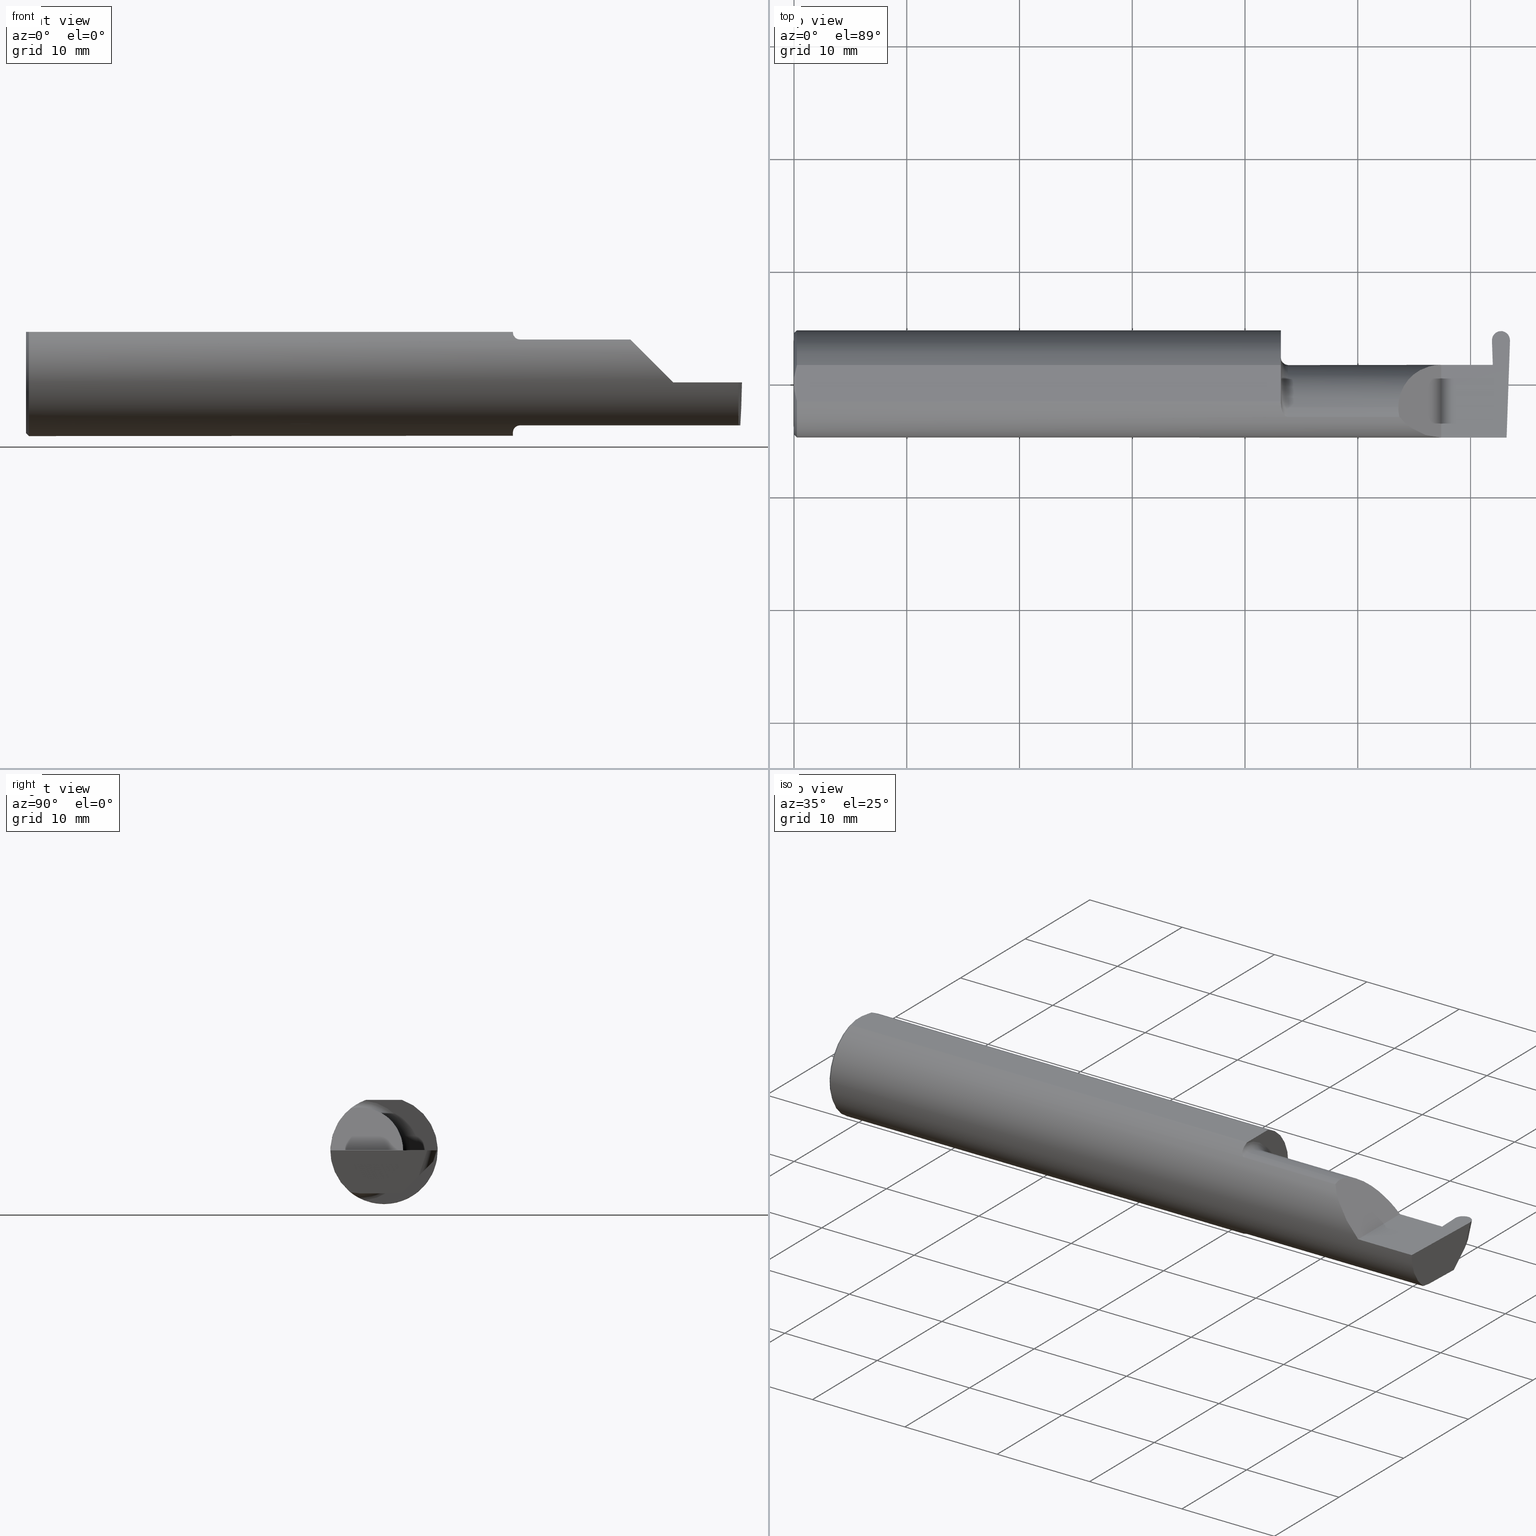
[diagram: canonical four-view strip — front | top / right | iso, engineering-drawing reading convention]
A machine part, canonical four-view strip (front | top / right | iso — engineering-drawing reading convention). The complete STEP part file that produces these views, byte-faithful:
ISO-10303-21;
HEADER;
FILE_DESCRIPTION (( 'STEP AP203' ),
    '1' );
FILE_NAME ('222143-GFR062-12.STEP',
    '2024-06-26T19:07:25',
    ( '' ),
    ( '' ),
    'SwSTEP 2.0',
    'SolidWorks 2024',
    '' );
FILE_SCHEMA (( 'CONFIG_CONTROL_DESIGN' ));
ENDSEC;

DATA;
#1 = PERSON_AND_ORGANIZATION ( #497, #401 ) ;
#2 = VERTEX_POINT ( 'NONE', #801 ) ;
#3 = EDGE_CURVE ( 'NONE', #701, #331, #411, .T. ) ;
#4 = CARTESIAN_POINT ( 'NONE',  ( 2.436927982915767288, 0.1506083980881225137, 0.000000000000000000 ) ) ;
#5 = CLOSED_SHELL ( 'NONE', ( #123, #649, #563, #377, #735, #600, #685, #46, #270, #730, #763, #70, #362, #182, #280, #488, #810, #305, #177, #349, #672, #289, #619 ) ) ;
#6 = VERTEX_POINT ( 'NONE', #573 ) ;
#7 = AXIS2_PLACEMENT_3D ( 'NONE', #476, #53, #655 ) ;
#8 = CARTESIAN_POINT ( 'NONE',  ( 2.468430450000000054, 0.1722870660481372052, -0.03801598549501235269 ) ) ;
#9 = EDGE_CURVE ( 'NONE', #382, #775, #140, .T. ) ;
#10 = ORIENTED_EDGE ( 'NONE', *, *, #525, .T. ) ;
#11 = CARTESIAN_POINT ( 'NONE',  ( 1.701062863587533558, -0.08334999999998819742, 0.1677879614275170628 ) ) ;
#12 = LINE ( 'NONE', #487, #18 ) ;
#13 = PERSON_AND_ORGANIZATION_ROLE ( 'design_supplier' ) ;
#14 = CARTESIAN_POINT ( 'NONE',  ( 2.436235694025149279, 0.1704329581048291409, 7.809760431069554296E-18 ) ) ;
#15 = LINE ( 'NONE', #580, #491 ) ;
#16 = EDGE_CURVE ( 'NONE', #352, #790, #615, .T. ) ;
#17 = DIRECTION ( 'NONE',  ( 0.000000000000000000, 0.9510565162951534202, -0.3090169943749482839 ) ) ;
#18 = VECTOR ( 'NONE', #740, 39.37007874015747433 ) ;
#19 = AXIS2_PLACEMENT_3D ( 'NONE', #781, #405, #510 ) ;
#20 = CARTESIAN_POINT ( 'NONE',  ( 1.724999999999999867, -0.08334999999999999354, 0.000000000000000000 ) ) ;
#21 = ORIENTED_EDGE ( 'NONE', *, *, #389, .T. ) ;
#22 = COORDINATED_UNIVERSAL_TIME_OFFSET ( 8, 0, .BEHIND. ) ;
#23 = PLANE ( 'NONE',  #315 ) ;
#24 = ORIENTED_EDGE ( 'NONE', *, *, #266, .F. ) ;
#25 = DIRECTION ( 'NONE',  ( -0.000000000000000000, 1.000000000000000000, -0.000000000000000000 ) ) ;
#26 = VERTEX_POINT ( 'NONE', #242 ) ;
#27 = CC_DESIGN_PERSON_AND_ORGANIZATION_ASSIGNMENT ( #453, #267, ( #731 ) ) ;
#28 = CARTESIAN_POINT ( 'NONE',  ( 2.109999999999998987, -0.08334999999999999354, 0.1499999999999999944 ) ) ;
#29 = ORIENTED_EDGE ( 'NONE', *, *, #16, .F. ) ;
#30 = CARTESIAN_POINT ( 'NONE',  ( 0.000000000000000000, 0.06325108694718235836, 0.1763499999999999235 ) ) ;
#31 = EDGE_CURVE ( 'NONE', #382, #815, #12, .T. ) ;
#32 = PRODUCT_DEFINITION_SHAPE ( 'NONE', 'NONE',  #261 ) ;
#33 = DESIGN_CONTEXT ( 'detailed design', #323, 'design' ) ;
#34 = CARTESIAN_POINT ( 'NONE',  ( 2.468430450000000054, 0.1722870660481372052, -0.03801598549501235269 ) ) ;
#35 = LINE ( 'NONE', #586, #392 ) ;
#36 = VECTOR ( 'NONE', #186, 39.37007874015748143 ) ;
#37 = EDGE_CURVE ( 'NONE', #717, #220, #62, .T. ) ;
#38 = AXIS2_PLACEMENT_3D ( 'NONE', #786, #610, #238 ) ;
#39 = FACE_OUTER_BOUND ( 'NONE', #624, .T. ) ;
#40 = ORIENTED_EDGE ( 'NONE', *, *, #546, .F. ) ;
#41 = DIMENSIONAL_EXPONENTS ( 1.000000000000000000, 0.000000000000000000, 0.000000000000000000, 0.000000000000000000, 0.000000000000000000, 0.000000000000000000, 0.000000000000000000 ) ;
#42 = PLANE ( 'NONE',  #754 ) ;
#43 = CARTESIAN_POINT ( 'NONE',  ( 1.699999999999999956, -0.06851976604679071992, -0.1743704796142198366 ) ) ;
#44 = ORIENTED_EDGE ( 'NONE', *, *, #146, .T. ) ;
#45 = CARTESIAN_POINT ( 'NONE',  ( 1.724999999999999867, -0.1172600179964006645, 0.1461167706989303372 ) ) ;
#46 = ADVANCED_FACE ( 'NONE', ( #429 ), #765, .F. ) ;
#47 = CARTESIAN_POINT ( 'NONE',  ( 2.080930449999999876, -0.1172600179964006784, 0.1461167706989303650 ) ) ;
#48 = ORIENTED_EDGE ( 'NONE', *, *, #748, .F. ) ;
#49 = CARTESIAN_POINT ( 'NONE',  ( 2.468430450000000054, 0.1722870660481372052, -0.03801598549501235269 ) ) ;
#50 = CIRCLE ( 'NONE', #595, 0.1873499999999999888 ) ;
#51 = VECTOR ( 'NONE', #198, 39.37007874015748854 ) ;
#52 = ORIENTED_EDGE ( 'NONE', *, *, #444, .T. ) ;
#53 = DIRECTION ( 'NONE',  ( -1.000000000000000000, -0.000000000000000000, -0.000000000000000000 ) ) ;
#54 = ORIENTED_EDGE ( 'NONE', *, *, #226, .T. ) ;
#55 = DIRECTION ( 'NONE',  ( -1.000000000000000000, -0.000000000000000000, -0.000000000000000000 ) ) ;
#56 = ORIENTED_EDGE ( 'NONE', *, *, #16, .T. ) ;
#57 = CC_DESIGN_PERSON_AND_ORGANIZATION_ASSIGNMENT ( #66, #552, ( #261 ) ) ;
#58 = CALENDAR_DATE ( 2024, 26, 6 ) ;
#59 = ORIENTED_EDGE ( 'NONE', *, *, #37, .F. ) ;
#60 = CARTESIAN_POINT ( 'NONE',  ( 0.01000000000000013205, -0.06325108694718235836, 0.1763499999999999235 ) ) ;
#61 = EDGE_CURVE ( 'NONE', #127, #775, #745, .T. ) ;
#62 = LINE ( 'NONE', #681, #246 ) ;
#63 = ORIENTED_EDGE ( 'NONE', *, *, #327, .F. ) ;
#64 = CARTESIAN_POINT ( 'NONE',  ( 2.439475726232482877, 0.1218770478189729889, -0.08842600372417713794 ) ) ;
#65 = AXIS2_PLACEMENT_3D ( 'NONE', #739, #665, #304 ) ;
#66 = PERSON_AND_ORGANIZATION ( #497, #401 ) ;
#67 = ORIENTED_EDGE ( 'NONE', *, *, #574, .T. ) ;
#68 = CARTESIAN_POINT ( 'NONE',  ( 1.699999999999999956, -0.06325108694718287183, 0.1763499999999999235 ) ) ;
#69 = LOCAL_TIME ( 12, 7, 25.00000000000000000, #22 ) ;
#70 = ADVANCED_FACE ( 'NONE', ( #129 ), #713, .T. ) ;
#71 = CARTESIAN_POINT ( 'NONE',  ( 2.489143054109411057, -0.08335000000000014619, -0.1500000000000000500 ) ) ;
#72 = ORIENTED_EDGE ( 'NONE', *, *, #409, .F. ) ;
#73 = CARTESIAN_POINT ( 'NONE',  ( 2.497385173767516786, 0.1218770478189729611, -0.08842600372417716570 ) ) ;
#74 = DIRECTION ( 'NONE',  ( 0.000000000000000000, 0.000000000000000000, 1.000000000000000000 ) ) ;
#75 = EDGE_LOOP ( 'NONE', ( #535, #644, #239, #147 ) ) ;
#76 = EDGE_CURVE ( 'NONE', #705, #747, #569, .T. ) ;
#77 = CARTESIAN_POINT ( 'NONE',  ( 1.724999999999999867, -0.1172600179964006784, -0.1461167706989303650 ) ) ;
#78 = CARTESIAN_POINT ( 'NONE',  ( 0.000000000000000000, 0.000000000000000000, 0.000000000000000000 ) ) ;
#79 = PERSON_AND_ORGANIZATION_ROLE ( 'creator' ) ;
#80 = AXIS2_PLACEMENT_3D ( 'NONE', #354, #599, #474 ) ;
#81 = AXIS2_PLACEMENT_3D ( 'NONE', #732, #528, #797 ) ;
#82 = CARTESIAN_POINT ( 'NONE',  ( 1.715551048069661411, -0.1140002044565611578, -0.1486821290834929865 ) ) ;
#83 = ORIENTED_EDGE ( 'NONE', *, *, #666, .T. ) ;
#84 =( BOUNDED_CURVE ( )  B_SPLINE_CURVE ( 3, ( #383, #254, #503, #761 ),
 .UNSPECIFIED., .F., .T. ) 
 B_SPLINE_CURVE_WITH_KNOTS ( ( 4, 4 ),
 ( 1.556955361882043087, 3.130020595955853135 ),
 .UNSPECIFIED. ) 
 CURVE ( )  GEOMETRIC_REPRESENTATION_ITEM ( )  RATIONAL_B_SPLINE_CURVE ( ( 1.000000000000000000, 0.8042027643195523989, 0.8042027643195523989, 1.000000000000000000 ) ) 
 REPRESENTATION_ITEM ( '' )  );
#85 = CARTESIAN_POINT ( 'NONE',  ( 2.442572338171930646, 0.06030305154315081240, -0.1500000000000000500 ) ) ;
#86 = B_SPLINE_CURVE_WITH_KNOTS ( 'NONE', 3,
 ( #752, #628, #631, #11 ),
 .UNSPECIFIED., .F., .F.,
 ( 4, 4 ),
 ( 4.423516731080805653E-05, 0.0004561457252213466573 ),
 .UNSPECIFIED. ) ;
#87 = CARTESIAN_POINT ( 'NONE',  ( 2.113883229301068312, -0.1172600179964008171, 0.1461167706989301707 ) ) ;
#88 = CARTESIAN_POINT ( 'NONE',  ( 1.724999999999999867, -0.08334999999999997966, -0.1749999999999999334 ) ) ;
#89 = LINE ( 'NONE', #30, #206 ) ;
#90 = ORIENTED_EDGE ( 'NONE', *, *, #480, .T. ) ;
#91 = DIRECTION ( 'NONE',  ( -0.000000000000000000, 1.000000000000000000, -0.000000000000000000 ) ) ;
#92 = AXIS2_PLACEMENT_3D ( 'NONE', #272, #466, #788 ) ;
#93 = VECTOR ( 'NONE', #678, 39.37007874015748143 ) ;
#94 = CARTESIAN_POINT ( 'NONE',  ( 2.113883229301068312, -0.1172600179964008171, 0.1461167706989301707 ) ) ;
#95 = CC_DESIGN_PERSON_AND_ORGANIZATION_ASSIGNMENT ( #143, #13, ( #581 ) ) ;
#96 = VERTEX_POINT ( 'NONE', #638 ) ;
#97 = EDGE_CURVE ( 'NONE', #775, #406, #334, .T. ) ;
#98 = LINE ( 'NONE', #160, #119 ) ;
#99 = CC_DESIGN_APPROVAL ( #255, ( #731 ) ) ;
#100 = CARTESIAN_POINT ( 'NONE',  ( -0.001039370078739994957, 0.06030305154315079852, -0.1500000000000000500 ) ) ;
#101 = CARTESIAN_POINT ( 'NONE',  ( 2.439954497345508511, 0.06655862405284596051, -0.005234924505382013322 ) ) ;
#102 = EDGE_CURVE ( 'NONE', #233, #485, #704, .T. ) ;
#103 = ORIENTED_EDGE ( 'NONE', *, *, #583, .F. ) ;
#104 = DIRECTION ( 'NONE',  ( -1.000000000000000000, -0.000000000000000000, -0.000000000000000000 ) ) ;
#105 = EDGE_LOOP ( 'NONE', ( #607, #197, #252, #794 ) ) ;
#106 = CIRCLE ( 'NONE', #167, 0.1499999999999999944 ) ;
#107 = DIRECTION ( 'NONE',  ( 0.000000000000000000, 0.000000000000000000, -1.000000000000000000 ) ) ;
#108 = CARTESIAN_POINT ( 'NONE',  ( 1.701062863587535334, -0.08334999999999991027, -0.1677879614275112619 ) ) ;
#109 = ORIENTED_EDGE ( 'NONE', *, *, #636, .T. ) ;
#110 = CARTESIAN_POINT ( 'NONE',  ( 2.489143054109411057, -0.08335000000000014619, -0.1500000000000000500 ) ) ;
#111 = EDGE_CURVE ( 'NONE', #400, #502, #35, .T. ) ;
#112 = DIRECTION ( 'NONE',  ( 1.000000000000000000, 7.488084056613327882E-15, -0.000000000000000000 ) ) ;
#113 = EDGE_LOOP ( 'NONE', ( #356, #218, #780, #442, #656 ) ) ;
#114 = CARTESIAN_POINT ( 'NONE',  ( 0.000000000000000000, -0.01880691362238934641, 0.1763499999999999235 ) ) ;
#115 = DIRECTION ( 'NONE',  ( 0.000000000000000000, 0.000000000000000000, -1.000000000000000000 ) ) ;
#116 = ORIENTED_EDGE ( 'NONE', *, *, #339, .T. ) ;
#117 = DIRECTION ( 'NONE',  ( 0.000000000000000000, -0.7071067811865434649, -0.7071067811865515695 ) ) ;
#118 = VECTOR ( 'NONE', #446, 39.37007874015748143 ) ;
#119 = VECTOR ( 'NONE', #516, 39.37007874015748143 ) ;
#120 = EDGE_LOOP ( 'NONE', ( #230, #434, #612 ) ) ;
#121 = PLANE ( 'NONE',  #700 ) ;
#122 = ORIENTED_EDGE ( 'NONE', *, *, #111, .T. ) ;
#123 = ADVANCED_FACE ( 'NONE', ( #712 ), #530, .T. ) ;
#124 = CARTESIAN_POINT ( 'NONE',  ( 2.500000000000000000, -0.2500000000000000555, 0.000000000000000000 ) ) ;
#125 = ORIENTED_EDGE ( 'NONE', *, *, #759, .F. ) ;
#126 = LENGTH_MEASURE_WITH_UNIT ( LENGTH_MEASURE( 0.02539999999999999897 ), #693 );
#127 = VERTEX_POINT ( 'NONE', #774 ) ;
#128 = DIRECTION ( 'NONE',  ( 1.000000000000000000, 0.000000000000000000, 0.000000000000000000 ) ) ;
#129 = FACE_OUTER_BOUND ( 'NONE', #105, .T. ) ;
#130 = DATE_AND_TIME ( #58, #413 ) ;
#131 = ORIENTED_EDGE ( 'NONE', *, *, #440, .T. ) ;
#132 = CARTESIAN_POINT ( 'NONE',  ( 2.486891473655445939, 0.1715521506114310035, -0.03875090093171857514 ) ) ;
#133 = VECTOR ( 'NONE', #436, 39.37007874015748143 ) ;
#134 = ORIENTED_EDGE ( 'NONE', *, *, #76, .T. ) ;
#135 = LINE ( 'NONE', #692, #784 ) ;
#136 = EDGE_CURVE ( 'NONE', #717, #418, #15, .T. ) ;
#137 = CARTESIAN_POINT ( 'NONE',  ( 2.468721519699850209, 0.1846500000000000363, 0.000000000000000000 ) ) ;
#138 = EDGE_LOOP ( 'NONE', ( #523, #284, #414, #582 ) ) ;
#139 = DIRECTION ( 'NONE',  ( 0.000000000000000000, 0.000000000000000000, -1.000000000000000000 ) ) ;
#140 =( BOUNDED_CURVE ( )  B_SPLINE_CURVE ( 3, ( #306, #506, #762, #424 ),
 .UNSPECIFIED., .F., .T. ) 
 B_SPLINE_CURVE_WITH_KNOTS ( ( 4, 4 ),
 ( 1.627103621474502049, 3.225696776093215590 ),
 .UNSPECIFIED. ) 
 CURVE ( )  GEOMETRIC_REPRESENTATION_ITEM ( )  RATIONAL_B_SPLINE_CURVE ( ( 1.000000000000000000, 0.7981407609938108161, 0.7981407609938108161, 1.000000000000000000 ) ) 
 REPRESENTATION_ITEM ( '' )  );
#141 = CARTESIAN_POINT ( 'NONE',  ( 2.442617676478078259, -0.08344164721461182210, -0.1500000000000000500 ) ) ;
#142 = CARTESIAN_POINT ( 'NONE',  ( 2.080930449999999876, -0.1172600179964006784, -0.1461167706989303650 ) ) ;
#143 = PERSON_AND_ORGANIZATION ( #497, #401 ) ;
#144 = AXIS2_PLACEMENT_3D ( 'NONE', #707, #769, #281 ) ;
#145 = CIRCLE ( 'NONE', #329, 0.1873499999999999888 ) ;
#146 = EDGE_CURVE ( 'NONE', #400, #233, #699, .T. ) ;
#147 = ORIENTED_EDGE ( 'NONE', *, *, #720, .T. ) ;
#148 = COORDINATED_UNIVERSAL_TIME_OFFSET ( 8, 0, .BEHIND. ) ;
#149 = CARTESIAN_POINT ( 'NONE',  ( 1.699999999999999956, 0.1873499999999998500, 0.1763499999999999235 ) ) ;
#150 = PLANE ( 'NONE',  #144 ) ;
#151 = ORIENTED_EDGE ( 'NONE', *, *, #720, .F. ) ;
#152 = CARTESIAN_POINT ( 'NONE',  ( 2.260000000000000231, -0.2500000000000000555, 2.939152317953647352E-17 ) ) ;
#153 = DIRECTION ( 'NONE',  ( -1.000000000000000000, -0.000000000000000000, -0.000000000000000000 ) ) ;
#154 = ORIENTED_EDGE ( 'NONE', *, *, #404, .T. ) ;
#155 = CARTESIAN_POINT ( 'NONE',  ( 2.468430450000000054, 0.1753165746847618611, -0.02871425790364445785 ) ) ;
#156 = AXIS2_PLACEMENT_3D ( 'NONE', #78, #328, #205 ) ;
#157 = DIRECTION ( 'NONE',  ( 0.000000000000000000, 0.000000000000000000, -1.000000000000000000 ) ) ;
#158 = EDGE_CURVE ( 'NONE', #459, #96, #455, .T. ) ;
#159 = APPROVAL_DATE_TIME ( #571, #255 ) ;
#160 = CARTESIAN_POINT ( 'NONE',  ( 2.440100631637626805, 0.1947434164498489384, -0.01555963509330036791 ) ) ;
#161 = EDGE_LOOP ( 'NONE', ( #312, #499, #648, #778, #592, #343 ) ) ;
#162 = CARTESIAN_POINT ( 'NONE',  ( 0.01000000000000013205, 0.06325108694718235836, 0.1763499999999999235 ) ) ;
#163 = CARTESIAN_POINT ( 'NONE',  ( 1.724999999999999867, -0.1172600179964006784, -0.1461167706989303650 ) ) ;
#164 = ORIENTED_EDGE ( 'NONE', *, *, #146, .F. ) ;
#165 = DIRECTION ( 'NONE',  ( 0.000000000000000000, 0.9510565162951533091, -0.3090169943749480619 ) ) ;
#166 = DIRECTION ( 'NONE',  ( 0.000000000000000000, 0.000000000000000000, -1.000000000000000000 ) ) ;
#167 = AXIS2_PLACEMENT_3D ( 'NONE', #451, #288, #396 ) ;
#168 = FACE_OUTER_BOUND ( 'NONE', #558, .T. ) ;
#169 = CARTESIAN_POINT ( 'NONE',  ( 1.699999999999999956, -0.08334999999999999354, 0.000000000000000000 ) ) ;
#170 = VERTEX_POINT ( 'NONE', #94 ) ;
#171 = LINE ( 'NONE', #300, #608 ) ;
#172 = FACE_OUTER_BOUND ( 'NONE', #161, .T. ) ;
#173 = ORIENTED_EDGE ( 'NONE', *, *, #469, .F. ) ;
#174 = APPROVAL ( #814, 'UNSPECIFIED' ) ;
#175 = DIRECTION ( 'NONE',  ( 1.000000000000000000, 0.000000000000000000, 0.000000000000000000 ) ) ;
#176 = CARTESIAN_POINT ( 'NONE',  ( 1.720724556588812071, -0.1172600179964061184, 0.1461167706989260351 ) ) ;
#177 = ADVANCED_FACE ( 'NONE', ( #472 ), #150, .F. ) ;
#178 = LINE ( 'NONE', #604, #477 ) ;
#179 = ORIENTED_EDGE ( 'NONE', *, *, #748, .T. ) ;
#180 = AXIS2_PLACEMENT_3D ( 'NONE', #779, #460, #651 ) ;
#181 = DIRECTION ( 'NONE',  ( -0.01806954526206907760, 0.01744955702544846027, 0.9996844524616944616 ) ) ;
#182 = ADVANCED_FACE ( 'NONE', ( #403 ), #225, .T. ) ;
#183 = CARTESIAN_POINT ( 'NONE',  ( 0.000000000000000000, 0.000000000000000000, 0.000000000000000000 ) ) ;
#184 = ORIENTED_EDGE ( 'NONE', *, *, #253, .T. ) ;
#185 = CARTESIAN_POINT ( 'NONE',  ( 1.701062863587535334, -0.08334999999999991027, -0.1677879614275112619 ) ) ;
#186 = DIRECTION ( 'NONE',  ( 1.000000000000000000, -0.000000000000000000, -0.000000000000000000 ) ) ;
#187 = DIRECTION ( 'NONE',  ( 1.000000000000000000, 0.000000000000000000, 0.000000000000000000 ) ) ;
#188 = EDGE_LOOP ( 'NONE', ( #378, #237, #67, #380, #342 ) ) ;
#189 = CARTESIAN_POINT ( 'NONE',  ( 2.487084196965268390, -0.1623470442677541203, -0.1099340280425337990 ) ) ;
#190 = ORIENTED_EDGE ( 'NONE', *, *, #236, .T. ) ;
#191 = CARTESIAN_POINT ( 'NONE',  ( 0.01000000000000013205, 0.000000000000000000, 0.000000000000000000 ) ) ;
#192 = EDGE_CURVE ( 'NONE', #554, #170, #575, .T. ) ;
#193 = AXIS2_PLACEMENT_3D ( 'NONE', #722, #646, #285 ) ;
#194 =( BOUNDED_CURVE ( )  B_SPLINE_CURVE ( 3, ( #639, #402, #155, #34 ),
 .UNSPECIFIED., .F., .F. ) 
 B_SPLINE_CURVE_WITH_KNOTS ( ( 4, 4 ),
 ( 4.712388980384702108, 4.737916900929588948 ),
 .UNSPECIFIED. ) 
 CURVE ( )  GEOMETRIC_REPRESENTATION_ITEM ( )  RATIONAL_B_SPLINE_CURVE ( ( 1.000000000000000000, 0.9999456945100086980, 0.9999456945100086980, 1.000000000000000000 ) ) 
 REPRESENTATION_ITEM ( '' )  );
#195 = AXIS2_PLACEMENT_3D ( 'NONE', #680, #128, #376 ) ;
#196 = COORDINATED_UNIVERSAL_TIME_OFFSET ( 8, 0, .BEHIND. ) ;
#197 = ORIENTED_EDGE ( 'NONE', *, *, #236, .F. ) ;
#198 = DIRECTION ( 'NONE',  ( -0.03489949670249307273, -0.9993908270190959842, 0.000000000000000000 ) ) ;
#199 = CARTESIAN_POINT ( 'NONE',  ( 2.442617647571764028, -0.08334999999999999354, -0.1500000000000000222 ) ) ;
#200 = CARTESIAN_POINT ( 'NONE',  ( 0.000000000000000000, 0.000000000000000000, -0.1773499999999999521 ) ) ;
#201 = CARTESIAN_POINT ( 'NONE',  ( 1.702158970028690321, -0.09067355718685707333, 0.1641499263364886718 ) ) ;
#202 = EDGE_CURVE ( 'NONE', #751, #633, #106, .T. ) ;
#203 = APPROVAL_DATE_TIME ( #340, #174 ) ;
#204 = CYLINDRICAL_SURFACE ( 'NONE', #367, 0.03149999999999998634 ) ;
#205 = DIRECTION ( 'NONE',  ( 0.000000000000000000, 0.000000000000000000, -1.000000000000000000 ) ) ;
#206 = VECTOR ( 'NONE', #642, 39.37007874015748143 ) ;
#207 = SHAPE_DEFINITION_REPRESENTATION ( #32, #723 ) ;
#208 = DIRECTION ( 'NONE',  ( 0.000000000000000000, 0.000000000000000000, 1.000000000000000000 ) ) ;
#209 = CARTESIAN_POINT ( 'NONE',  ( 2.150065971957465294, -0.1623470442677542591, 0.1099340280425336325 ) ) ;
#210 = ORIENTED_EDGE ( 'NONE', *, *, #202, .T. ) ;
#211 = CARTESIAN_POINT ( 'NONE',  ( 2.109999999999998543, 0.004517965644035734120, 0.1499999999999999667 ) ) ;
#212 = DIRECTION ( 'NONE',  ( -0.03701744261649762141, 0.7066221440565398915, 0.7066221440565479961 ) ) ;
#213 = ORIENTED_EDGE ( 'NONE', *, *, #666, .F. ) ;
#214 = APPROVAL_ROLE ( '' ) ;
#215 = FACE_OUTER_BOUND ( 'NONE', #282, .T. ) ;
#216 = DIRECTION ( 'NONE',  ( 0.7071067811865511255, 0.000000000000000000, -0.7071067811865439090 ) ) ;
#217 = EDGE_CURVE ( 'NONE', #585, #513, #89, .T. ) ;
#218 = ORIENTED_EDGE ( 'NONE', *, *, #404, .F. ) ;
#219 = CARTESIAN_POINT ( 'NONE',  ( 2.109999999999998543, -0.09477667630339427218, 0.1499999999999999667 ) ) ;
#220 = VERTEX_POINT ( 'NONE', #337 ) ;
#221 = VECTOR ( 'NONE', #390, 39.37007874015748143 ) ;
#222 = CARTESIAN_POINT ( 'NONE',  ( 0.001616639753276021213, 0.03405189565400638246, 0.1763499999999999235 ) ) ;
#223 = CARTESIAN_POINT ( 'NONE',  ( 1.724999999999999867, -0.08334999999999997966, -0.1499999999999999944 ) ) ;
#224 =( BOUNDED_CURVE ( )  B_SPLINE_CURVE ( 3, ( #8, #132, #258, #505 ),
 .UNSPECIFIED., .F., .F. ) 
 B_SPLINE_CURVE_WITH_KNOTS ( ( 4, 4 ),
 ( 3.153164711223715777, 4.726229945297543367 ),
 .UNSPECIFIED. ) 
 CURVE ( )  GEOMETRIC_REPRESENTATION_ITEM ( )  RATIONAL_B_SPLINE_CURVE ( ( 1.000000000000000000, 0.8042027643195482911, 0.8042027643195482911, 1.000000000000000000 ) ) 
 REPRESENTATION_ITEM ( '' )  );
#225 = CYLINDRICAL_SURFACE ( 'NONE', #193, 0.1499999999999999944 ) ;
#226 = EDGE_CURVE ( 'NONE', #331, #751, #299, .T. ) ;
#227 = CYLINDRICAL_SURFACE ( 'NONE', #596, 0.1499999999999999944 ) ;
#228 = PLANE ( 'NONE',  #80 ) ;
#229 = DIRECTION ( 'NONE',  ( 0.01806679408117650709, 0.000000000000000000, -0.9998367821557817559 ) ) ;
#230 = ORIENTED_EDGE ( 'NONE', *, *, #97, .T. ) ;
#231 = CC_DESIGN_PERSON_AND_ORGANIZATION_ASSIGNMENT ( #1, #430, ( #468 ) ) ;
#232 = FACE_OUTER_BOUND ( 'NONE', #733, .T. ) ;
#233 = VERTEX_POINT ( 'NONE', #518 ) ;
#234 = CARTESIAN_POINT ( 'NONE',  ( 1.699999999999999956, -0.08334999999999999354, 0.1499999999999999944 ) ) ;
#235 = CC_DESIGN_SECURITY_CLASSIFICATION ( #731, ( #581 ) ) ;
#236 = EDGE_CURVE ( 'NONE', #485, #400, #809, .T. ) ;
#237 = ORIENTED_EDGE ( 'NONE', *, *, #613, .F. ) ;
#238 = DIRECTION ( 'NONE',  ( 0.000000000000000000, 0.000000000000000000, 1.000000000000000000 ) ) ;
#239 = ORIENTED_EDGE ( 'NONE', *, *, #226, .F. ) ;
#240 = FACE_OUTER_BOUND ( 'NONE', #277, .T. ) ;
#241 = EDGE_CURVE ( 'NONE', #485, #513, #643, .T. ) ;
#242 = CARTESIAN_POINT ( 'NONE',  ( 2.260000000000000231, 0.06664999999999998703, 9.797174393178831081E-17 ) ) ;
#243 = PERSON_AND_ORGANIZATION ( #497, #401 ) ;
#244 = ORIENTED_EDGE ( 'NONE', *, *, #785, .T. ) ;
#245 = CARTESIAN_POINT ( 'NONE',  ( 0.001595548104417008695, -0.03385300050298640367, 0.1763499999999999235 ) ) ;
#246 = VECTOR ( 'NONE', #181, 39.37007874015747433 ) ;
#247 = AXIS2_PLACEMENT_3D ( 'NONE', #664, #673, #229 ) ;
#248 = CARTESIAN_POINT ( 'NONE',  ( 2.260000000000000231, -0.2500000000000000555, 2.939152317953647352E-17 ) ) ;
#249 = PLANE ( 'NONE',  #351 ) ;
#250 = ORIENTED_EDGE ( 'NONE', *, *, #202, .F. ) ;
#251 = CARTESIAN_POINT ( 'NONE',  ( 1.705806801261507077, -0.1009700360460132340, -0.1578590382459147401 ) ) ;
#252 = ORIENTED_EDGE ( 'NONE', *, *, #241, .T. ) ;
#253 = EDGE_CURVE ( 'NONE', #529, #96, #407, .T. ) ;
#254 = CARTESIAN_POINT ( 'NONE',  ( 2.437968007029192030, 0.1506577441815558915, -0.05964530736159392305 ) ) ;
#255 = APPROVAL ( #776, 'UNSPECIFIED' ) ;
#256 = APPLICATION_PROTOCOL_DEFINITION ( 'international standard', 'config_control_design', 1994, #323 ) ;
#257 = ORIENTED_EDGE ( 'NONE', *, *, #480, .F. ) ;
#258 = CARTESIAN_POINT ( 'NONE',  ( 2.498892892970808521, 0.1506577441815562524, -0.05964530736159356916 ) ) ;
#259 = TOROIDAL_SURFACE ( 'NONE', #594, 0.1749999999999999334, 0.02499999999999993894 ) ;
#260 = VECTOR ( 'NONE', #395, 39.37007874015748143 ) ;
#261 = PRODUCT_DEFINITION ( 'UNKNOWN', '', #581, #33 ) ;
#262 = DIRECTION ( 'NONE',  ( 0.000000000000000000, -0.9510565162951534202, 0.3090169943749482284 ) ) ;
#263 = ORIENTED_EDGE ( 'NONE', *, *, #409, .T. ) ;
#264 = LINE ( 'NONE', #438, #51 ) ;
#265 = CARTESIAN_POINT ( 'NONE',  ( 1.701062863587533558, -0.08334999999998819742, 0.1677879614275170628 ) ) ;
#266 = EDGE_CURVE ( 'NONE', #701, #751, #659, .T. ) ;
#267 = PERSON_AND_ORGANIZATION_ROLE ( 'classification_officer' ) ;
#268 = CARTESIAN_POINT ( 'NONE',  ( 1.702380638915944600, -0.09060738690120614947, -0.1640321561807271122 ) ) ;
#269 = DIRECTION ( 'NONE',  ( -0.7071067811865441310, 0.000000000000000000, -0.7071067811865510144 ) ) ;
#270 = ADVANCED_FACE ( 'NONE', ( #536 ), #310, .F. ) ;
#271 = LINE ( 'NONE', #149, #647 ) ;
#272 = CARTESIAN_POINT ( 'NONE',  ( 1.699999999999999956, -0.08334999999999999354, 0.000000000000000000 ) ) ;
#273 = AXIS2_PLACEMENT_3D ( 'NONE', #381, #318, #139 ) ;
#274 = VECTOR ( 'NONE', #387, 39.37007874015748143 ) ;
#275 = DIRECTION ( 'NONE',  ( 0.000000000000000000, 1.000000000000000000, 0.000000000000000000 ) ) ;
#276 = CARTESIAN_POINT ( 'NONE',  ( 2.260000000000000231, -0.1873499999999999888, 2.939152317953647352E-17 ) ) ;
#277 = EDGE_LOOP ( 'NONE', ( #21, #787, #398, #179 ) ) ;
#278 = CALENDAR_DATE ( 2024, 26, 6 ) ;
#279 = DIRECTION ( 'NONE',  ( 7.486943585142156164E-15, -0.9998476951563912696, 0.01745240643728358451 ) ) ;
#280 = ADVANCED_FACE ( 'NONE', ( #240 ), #545, .T. ) ;
#281 = DIRECTION ( 'NONE',  ( -0.03489949670249345437, 0.9993908270190959842, 0.000000000000000000 ) ) ;
#282 = EDGE_LOOP ( 'NONE', ( #617, #709, #589 ) ) ;
#283 = CARTESIAN_POINT ( 'NONE',  ( 0.01000000000000013205, 0.000000000000000000, -0.1873499999999999888 ) ) ;
#284 = ORIENTED_EDGE ( 'NONE', *, *, #192, .F. ) ;
#285 = DIRECTION ( 'NONE',  ( 0.000000000000000000, 0.000000000000000000, 1.000000000000000000 ) ) ;
#286 = LINE ( 'NONE', #363, #439 ) ;
#287 = AXIS2_PLACEMENT_3D ( 'NONE', #427, #294, #165 ) ;
#288 = DIRECTION ( 'NONE',  ( -1.000000000000000000, -0.000000000000000000, -0.000000000000000000 ) ) ;
#289 = ADVANCED_FACE ( 'NONE', ( #492 ), #606, .T. ) ;
#290 = DIRECTION ( 'NONE',  ( 0.02739170151059983765, 0.3089010440752013031, 0.9506996579664920288 ) ) ;
#291 = DIRECTION ( 'NONE',  ( 0.000000000000000000, 0.000000000000000000, -1.000000000000000000 ) ) ;
#292 = CARTESIAN_POINT ( 'NONE',  ( 2.430708765333227994, 0.06661954135095468632, -0.001744974835126431381 ) ) ;
#293 = VERTEX_POINT ( 'NONE', #415 ) ;
#294 = DIRECTION ( 'NONE',  ( -0.02739170151059983765, -0.3089010440752013031, -0.9506996579664919178 ) ) ;
#295 = CC_DESIGN_DATE_AND_TIME_ASSIGNMENT ( #811, #379, ( #261 ) ) ;
#296 = CARTESIAN_POINT ( 'NONE',  ( 2.442502567817287584, 0.06409798100083120842, -0.1462050705423010022 ) ) ;
#297 = ORIENTED_EDGE ( 'NONE', *, *, #61, .F. ) ;
#298 = EDGE_CURVE ( 'NONE', #738, #233, #309, .T. ) ;
#299 = CIRCLE ( 'NONE', #568, 0.1499999999999999944 ) ;
#300 = CARTESIAN_POINT ( 'NONE',  ( 2.436916352538876840, 0.1507395558974708172, 0.0004036622306032534510 ) ) ;
#301 = ORIENTED_EDGE ( 'NONE', *, *, #509, .T. ) ;
#302 = CARTESIAN_POINT ( 'NONE',  ( 0.01000000000000013205, -0.06325108694718235836, 0.1763499999999999235 ) ) ;
#303 = ORIENTED_EDGE ( 'NONE', *, *, #708, .T. ) ;
#304 = DIRECTION ( 'NONE',  ( 0.000000000000000000, 0.000000000000000000, 1.000000000000000000 ) ) ;
#305 = ADVANCED_FACE ( 'NONE', ( #361 ), #42, .F. ) ;
#306 = CARTESIAN_POINT ( 'NONE',  ( 2.499932917084233264, 0.1506083980881225415, 0.000000000000000000 ) ) ;
#307 = APPLICATION_CONTEXT ( 'configuration controlled 3d designs of mechanical parts and assemblies' ) ;
#308 = VERTEX_POINT ( 'NONE', #49 ) ;
#309 = B_SPLINE_CURVE_WITH_KNOTS ( 'NONE', 3,
 ( #60, #412, #245, #114 ),
 .UNSPECIFIED., .F., .F.,
 ( 4, 4 ),
 ( 0.009771445421851331775, 0.01092787937989104369 ),
 .UNSPECIFIED. ) ;
#310 = PLANE ( 'NONE',  #671 ) ;
#311 = EDGE_LOOP ( 'NONE', ( #325, #116, #494, #371, #478 ) ) ;
#312 = ORIENTED_EDGE ( 'NONE', *, *, #550, .T. ) ;
#313 = CARTESIAN_POINT ( 'NONE',  ( 0.000000000000000000, 0.01880691362238934988, 0.1763499999999999235 ) ) ;
#314 = VECTOR ( 'NONE', #603, 39.37007874015748143 ) ;
#315 = AXIS2_PLACEMENT_3D ( 'NONE', #579, #279, #645 ) ;
#316 = PERSON_AND_ORGANIZATION ( #497, #401 ) ;
#317 = ORIENTED_EDGE ( 'NONE', *, *, #772, .F. ) ;
#318 = DIRECTION ( 'NONE',  ( 1.000000000000000000, 0.000000000000000000, 0.000000000000000000 ) ) ;
#319 = LOCAL_TIME ( 12, 7, 25.00000000000000000, #710 ) ;
#320 = CARTESIAN_POINT ( 'NONE',  ( 2.488744025780163405, -0.09477667630339431382, -0.1499999999999999667 ) ) ;
#321 = ORIENTED_EDGE ( 'NONE', *, *, #658, .F. ) ;
#322 = CARTESIAN_POINT ( 'NONE',  ( 1.717163414264744281, -0.1151183835841406849, -0.1478135984872520625 ) ) ;
#323 = APPLICATION_CONTEXT ( 'configuration controlled 3d designs of mechanical parts and assemblies' ) ;
#324 = MECHANICAL_CONTEXT ( 'NONE', #307, 'mechanical' ) ;
#325 = ORIENTED_EDGE ( 'NONE', *, *, #397, .T. ) ;
#326 = CARTESIAN_POINT ( 'NONE',  ( 1.704475235432781455, -0.09757364237049408195, -0.1599863467203317680 ) ) ;
#327 = EDGE_CURVE ( 'NONE', #790, #633, #486, .T. ) ;
#328 = DIRECTION ( 'NONE',  ( 1.000000000000000000, 0.000000000000000000, 0.000000000000000000 ) ) ;
#329 = AXIS2_PLACEMENT_3D ( 'NONE', #191, #634, #445 ) ;
#330 = EDGE_CURVE ( 'NONE', #452, #6, #50, .T. ) ;
#331 = VERTEX_POINT ( 'NONE', #45 ) ;
#332 =( BOUNDED_CURVE ( )  B_SPLINE_CURVE ( 3, ( #464, #711, #766, #101 ),
 .UNSPECIFIED., .F., .F. ) 
 B_SPLINE_CURVE_WITH_KNOTS ( ( 4, 4 ),
 ( 3.159045946109736214, 4.694935687864695950 ),
 .UNSPECIFIED. ) 
 CURVE ( )  GEOMETRIC_REPRESENTATION_ITEM ( )  RATIONAL_B_SPLINE_CURVE ( ( 1.000000000000000000, 0.8128932002257790446, 0.8128932002257790446, 1.000000000000000000 ) ) 
 REPRESENTATION_ITEM ( '' )  );
#333 = CARTESIAN_POINT ( 'NONE',  ( 2.466286742368338114, 0.2055425243730719109, 0.06430057831303588600 ) ) ;
#334 = LINE ( 'NONE', #782, #741 ) ;
#335 = CALENDAR_DATE ( 2024, 26, 6 ) ;
#336 = CARTESIAN_POINT ( 'NONE',  ( 2.260000000000000231, 0.06664999999999998703, 9.797174393178831081E-17 ) ) ;
#337 = CARTESIAN_POINT ( 'NONE',  ( 2.439954497345508511, 0.06655862405284596051, -0.005234924505382013322 ) ) ;
#338 = ORIENTED_EDGE ( 'NONE', *, *, #509, .F. ) ;
#339 = EDGE_CURVE ( 'NONE', #808, #418, #171, .T. ) ;
#340 = DATE_AND_TIME ( #278, #69 ) ;
#341 = CARTESIAN_POINT ( 'NONE',  ( 2.468139380300150343, 0.1846500000000000363, 0.000000000000000000 ) ) ;
#342 = ORIENTED_EDGE ( 'NONE', *, *, #339, .F. ) ;
#343 = ORIENTED_EDGE ( 'NONE', *, *, #298, .F. ) ;
#344 = DIRECTION ( 'NONE',  ( -0.02739170151059995562, 0.3089010440752013587, 0.9506996579664918068 ) ) ;
#345 = UNCERTAINTY_MEASURE_WITH_UNIT (LENGTH_MEASURE( 1.000000000000000082E-05 ), #561, 'distance_accuracy_value', 'NONE');
#346 = CARTESIAN_POINT ( 'NONE',  ( 1.699999999999999956, -0.06851976604679071992, -0.1743704796142198366 ) ) ;
#347 = VERTEX_POINT ( 'NONE', #532 ) ;
#348 = CARTESIAN_POINT ( 'NONE',  ( 2.496599625675735457, 0.1068818013178887971, -0.1034212502252615240 ) ) ;
#349 = ADVANCED_FACE ( 'NONE', ( #799 ), #228, .F. ) ;
#350 = CARTESIAN_POINT ( 'NONE',  ( 2.488026713523223243, -0.1172600179964006784, -0.1461167706989303650 ) ) ;
#351 = AXIS2_PLACEMENT_3D ( 'NONE', #625, #262, #742 ) ;
#352 = VERTEX_POINT ( 'NONE', #110 ) ;
#353 = CIRCLE ( 'NONE', #539, 0.1499999999999999944 ) ;
#354 = CARTESIAN_POINT ( 'NONE',  ( 2.499980768683121024, 0.1519786885938757826, 0.000000000000000000 ) ) ;
#355 = FACE_OUTER_BOUND ( 'NONE', #75, .T. ) ;
#356 = ORIENTED_EDGE ( 'NONE', *, *, #708, .F. ) ;
#357 = CARTESIAN_POINT ( 'NONE',  ( -0.001039370078739994957, 0.1723030515431495657, -0.03799999999999999906 ) ) ;
#358 = EDGE_CURVE ( 'NONE', #490, #751, #734, .T. ) ;
#359 = CARTESIAN_POINT ( 'NONE',  ( 2.430739223982273156, 0.06664999999999991764, 0.000000000000000000 ) ) ;
#360 = ORIENTED_EDGE ( 'NONE', *, *, #9, .T. ) ;
#361 = FACE_OUTER_BOUND ( 'NONE', #520, .T. ) ;
#362 = ADVANCED_FACE ( 'NONE', ( #726 ), #259, .F. ) ;
#363 = CARTESIAN_POINT ( 'NONE',  ( 2.499944547461123268, 0.1507395558974708449, 0.0004036622306032633173 ) ) ;
#364 = ORIENTED_EDGE ( 'NONE', *, *, #785, .F. ) ;
#365 = TOROIDAL_SURFACE ( 'NONE', #65, 0.1749999999999999334, 0.02499999999999993894 ) ;
#366 = CARTESIAN_POINT ( 'NONE',  ( 1.724999999999999867, -0.08334999999999999354, 0.1749999999999999334 ) ) ;
#367 = AXIS2_PLACEMENT_3D ( 'NONE', #447, #698, #17 ) ;
#368 = PRODUCT_RELATED_PRODUCT_CATEGORY ( 'detail', '', ( #468 ) ) ;
#369 = CARTESIAN_POINT ( 'NONE',  ( 1.724999999999999867, -0.1172600179964006645, 0.1461167706989303372 ) ) ;
#370 = CARTESIAN_POINT ( 'NONE',  ( 0.000000000000000000, 0.000000000000000000, 0.000000000000000000 ) ) ;
#371 = ORIENTED_EDGE ( 'NONE', *, *, #37, .T. ) ;
#372 = DIRECTION ( 'NONE',  ( 1.000000000000000000, 0.000000000000000000, 0.000000000000000000 ) ) ;
#373 = CARTESIAN_POINT ( 'NONE',  ( 1.704075010165368775, -0.09778159395695865119, 0.1599914159748310472 ) ) ;
#374 = LINE ( 'NONE', #385, #133 ) ;
#375 = ORIENTED_EDGE ( 'NONE', *, *, #432, .T. ) ;
#376 = DIRECTION ( 'NONE',  ( 0.000000000000000000, 0.000000000000000000, -1.000000000000000000 ) ) ;
#377 = ADVANCED_FACE ( 'NONE', ( #168 ), #365, .F. ) ;
#378 = ORIENTED_EDGE ( 'NONE', *, *, #525, .F. ) ;
#379 = DATE_TIME_ROLE ( 'creation_date' ) ;
#380 = ORIENTED_EDGE ( 'NONE', *, *, #432, .F. ) ;
#381 = CARTESIAN_POINT ( 'NONE',  ( 1.699999999999999956, 0.000000000000000000, 0.000000000000000000 ) ) ;
#382 = VERTEX_POINT ( 'NONE', #669 ) ;
#383 = CARTESIAN_POINT ( 'NONE',  ( 2.439475726232482877, 0.1218770478189729889, -0.08842600372417713794 ) ) ;
#384 = EDGE_CURVE ( 'NONE', #705, #815, #746, .T. ) ;
#385 = CARTESIAN_POINT ( 'NONE',  ( 1.699999999999999956, 0.06664999999999998703, 9.797174393178831081E-17 ) ) ;
#386 = EDGE_LOOP ( 'NONE', ( #301, #59, #40, #566 ) ) ;
#387 = DIRECTION ( 'NONE',  ( -0.03489949670249346131, 0.9993908270190959842, -0.000000000000000000 ) ) ;
#388 = FACE_OUTER_BOUND ( 'NONE', #120, .T. ) ;
#389 = EDGE_CURVE ( 'NONE', #540, #585, #626, .T. ) ;
#390 = DIRECTION ( 'NONE',  ( -0.0003154085283454578109, 0.9999999502587288980, 0.000000000000000000 ) ) ;
#391 = DIRECTION ( 'NONE',  ( -1.000000000000000000, -0.000000000000000000, -0.000000000000000000 ) ) ;
#392 = VECTOR ( 'NONE', #216, 39.37007874015748143 ) ;
#393 = CARTESIAN_POINT ( 'NONE',  ( 2.436927982915767288, 0.1506083980881225137, 0.000000000000000000 ) ) ;
#394 = B_SPLINE_CURVE_WITH_KNOTS ( 'NONE', 3,
 ( #77, #635, #435, #322, #82, #560, #744, #251, #326, #268, #564, #185 ),
 .UNSPECIFIED., .F., .F.,
 ( 4, 2, 2, 2, 2, 4 ),
 ( 1.967976973658592312E-07, 0.0001599896235275545693, 0.0003197824493577432442, 0.0006393681010181212444, 0.0009589537526784992988, 0.001278539404338877245 ),
 .UNSPECIFIED. ) ;
#395 = DIRECTION ( 'NONE',  ( 1.000000000000000000, 0.000000000000000000, 0.000000000000000000 ) ) ;
#396 = DIRECTION ( 'NONE',  ( 0.000000000000000000, 0.000000000000000000, 1.000000000000000000 ) ) ;
#397 = EDGE_CURVE ( 'NONE', #293, #808, #813, .T. ) ;
#398 = ORIENTED_EDGE ( 'NONE', *, *, #330, .T. ) ;
#399 = DIRECTION ( 'NONE',  ( 0.000000000000000000, 0.000000000000000000, 1.000000000000000000 ) ) ;
#400 = VERTEX_POINT ( 'NONE', #200 ) ;
#401 = ORGANIZATION ( 'UNSPECIFIED', 'UNSPECIFIED', '' ) ;
#402 = CARTESIAN_POINT ( 'NONE',  ( 2.468430450000000054, 0.1783435689548762415, -0.01940919900590836258 ) ) ;
#403 = FACE_OUTER_BOUND ( 'NONE', #661, .T. ) ;
#404 = EDGE_CURVE ( 'NONE', #308, #459, #224, .T. ) ;
#405 = DIRECTION ( 'NONE',  ( -1.000000000000000000, -0.000000000000000000, -0.000000000000000000 ) ) ;
#406 = VERTEX_POINT ( 'NONE', #572 ) ;
#407 = LINE ( 'NONE', #100, #553 ) ;
#408 = DIRECTION ( 'NONE',  ( 1.000000000000000000, 0.000000000000000000, 0.000000000000000000 ) ) ;
#409 = EDGE_CURVE ( 'NONE', #6, #701, #86, .T. ) ;
#410 = ORIENTED_EDGE ( 'NONE', *, *, #420, .T. ) ;
#411 = B_SPLINE_CURVE_WITH_KNOTS ( 'NONE', 3,
 ( #265, #201, #373, #551, #483, #736, #176, #369 ),
 .UNSPECIFIED., .F., .F.,
 ( 4, 2, 2, 4 ),
 ( 0.0004561457252213466573, 0.001084815134961801542, 0.001399149839832030014, 0.001713484544702258486 ),
 .UNSPECIFIED. ) ;
#412 = CARTESIAN_POINT ( 'NONE',  ( 0.005151108632379722968, -0.04888864921576022843, 0.1763499999999999235 ) ) ;
#413 = LOCAL_TIME ( 12, 7, 25.00000000000000000, #682 ) ;
#414 = ORIENTED_EDGE ( 'NONE', *, *, #629, .T. ) ;
#415 = CARTESIAN_POINT ( 'NONE',  ( 2.439859874782298377, 0.06664999999999998703, 0.000000000000000000 ) ) ;
#416 = CARTESIAN_POINT ( 'NONE',  ( 2.430678306684182832, 0.06658908270190945500, -0.003489949670252863196 ) ) ;
#417 = LOCAL_TIME ( 12, 7, 25.00000000000000000, #148 ) ;
#418 = VERTEX_POINT ( 'NONE', #64 ) ;
#419 = DIRECTION ( 'NONE',  ( -1.000000000000000000, -0.000000000000000000, -0.000000000000000000 ) ) ;
#420 = EDGE_CURVE ( 'NONE', #96, #352, #264, .T. ) ;
#421 = PLANE ( 'NONE',  #81 ) ;
#422 = ORIENTED_EDGE ( 'NONE', *, *, #384, .F. ) ;
#423 = DIRECTION ( 'NONE',  ( 0.000000000000000000, 0.000000000000000000, 1.000000000000000000 ) ) ;
#424 = CARTESIAN_POINT ( 'NONE',  ( 2.468721519699850209, 0.1846500000000000363, 0.000000000000000000 ) ) ;
#425 = DIRECTION ( 'NONE',  ( -1.000000000000000000, -0.000000000000000000, -0.000000000000000000 ) ) ;
#426 = ORIENTED_EDGE ( 'NONE', *, *, #327, .T. ) ;
#427 = CARTESIAN_POINT ( 'NONE',  ( 2.466868444985754305, 0.1337942696928608455, -0.05458170264606325428 ) ) ;
#428 = VECTOR ( 'NONE', #91, 39.37007874015748143 ) ;
#429 = FACE_OUTER_BOUND ( 'NONE', #138, .T. ) ;
#430 = PERSON_AND_ORGANIZATION_ROLE ( 'design_owner' ) ;
#431 = ORIENTED_EDGE ( 'NONE', *, *, #76, .F. ) ;
#432 = EDGE_CURVE ( 'NONE', #418, #308, #84, .T. ) ;
#433 = CARTESIAN_POINT ( 'NONE',  ( 2.430739223982273156, 0.06664999999999991764, 0.000000000000000000 ) ) ;
#434 = ORIENTED_EDGE ( 'NONE', *, *, #613, .T. ) ;
#435 = CARTESIAN_POINT ( 'NONE',  ( 1.720804171164107332, -0.1167508198888949772, -0.1465276362740037253 ) ) ;
#436 = DIRECTION ( 'NONE',  ( 1.000000000000000000, 0.000000000000000000, 0.000000000000000000 ) ) ;
#437 = ORIENTED_EDGE ( 'NONE', *, *, #397, .F. ) ;
#438 = CARTESIAN_POINT ( 'NONE',  ( 2.489440290287315172, -0.07483826952468658478, -0.1500000000000000500 ) ) ;
#439 = VECTOR ( 'NONE', #290, 39.37007874015747433 ) ;
#440 = EDGE_CURVE ( 'NONE', #220, #2, #135, .T. ) ;
#441 = CALENDAR_DATE ( 2024, 26, 6 ) ;
#442 = ORIENTED_EDGE ( 'NONE', *, *, #97, .F. ) ;
#443 = CARTESIAN_POINT ( 'NONE',  ( 2.488131149766799943, -0.1873499999999999888, 0.000000000000000000 ) ) ;
#444 = EDGE_CURVE ( 'NONE', #502, #513, #145, .T. ) ;
#445 = DIRECTION ( 'NONE',  ( 0.000000000000000000, 0.000000000000000000, -1.000000000000000000 ) ) ;
#446 = DIRECTION ( 'NONE',  ( -1.000000000000000000, -0.000000000000000000, -0.000000000000000000 ) ) ;
#447 = CARTESIAN_POINT ( 'NONE',  ( 2.468392368909974710, 0.1518387226096841736, 0.0009534130333776854498 ) ) ;
#448 = CARTESIAN_POINT ( 'NONE',  ( -0.001039370078739994957, 0.1846500000000000363, 0.000000000000000000 ) ) ;
#449 = VECTOR ( 'NONE', #616, 39.37007874015747433 ) ;
#450 = FACE_OUTER_BOUND ( 'NONE', #188, .T. ) ;
#451 = CARTESIAN_POINT ( 'NONE',  ( 1.724999999999999867, -0.08334999999999999354, 0.000000000000000000 ) ) ;
#452 = VERTEX_POINT ( 'NONE', #68 ) ;
#453 = PERSON_AND_ORGANIZATION ( #497, #401 ) ;
#454 = CARTESIAN_POINT ( 'NONE',  ( 0.01000000000000013205, 0.06325108694718235836, 0.1763499999999999235 ) ) ;
#455 = LINE ( 'NONE', #348, #526 ) ;
#456 = ORIENTED_EDGE ( 'NONE', *, *, #136, .T. ) ;
#457 = PERSON_AND_ORGANIZATION ( #497, #401 ) ;
#458 = DIRECTION ( 'NONE',  ( -0.000000000000000000, 1.000000000000000000, 1.224646799147353207E-16 ) ) ;
#459 = VERTEX_POINT ( 'NONE', #73 ) ;
#460 = DIRECTION ( 'NONE',  ( -1.000000000000000000, -0.000000000000000000, -0.000000000000000000 ) ) ;
#461 = EDGE_CURVE ( 'NONE', #790, #529, #690, .T. ) ;
#462 = AXIS2_PLACEMENT_3D ( 'NONE', #248, #269, #695 ) ;
#463 = AXIS2_PLACEMENT_3D ( 'NONE', #667, #470, #115 ) ;
#464 = CARTESIAN_POINT ( 'NONE',  ( 2.442617647571764028, -0.08334999999999999354, -0.1500000000000000222 ) ) ;
#465 = ORIENTED_EDGE ( 'NONE', *, *, #697, .F. ) ;
#466 = DIRECTION ( 'NONE',  ( -1.000000000000000000, -0.000000000000000000, -0.000000000000000000 ) ) ;
#467 = B_SPLINE_CURVE_WITH_KNOTS ( 'NONE', 3,
 ( #721, #416, #292, #359 ),
 .UNSPECIFIED., .F., .F.,
 ( 4, 4 ),
 ( 0.000000000000000000, 1.000000000000000000 ),
 .UNSPECIFIED. ) ;
#468 = PRODUCT ( '222143-GFR062-12', '222143-GFR062-12', '', ( #324 ) ) ;
#469 = EDGE_CURVE ( 'NONE', #747, #347, #394, .T. ) ;
#470 = DIRECTION ( 'NONE',  ( 1.000000000000000000, 0.000000000000000000, 0.000000000000000000 ) ) ;
#471 = VERTEX_POINT ( 'NONE', #433 ) ;
#472 = FACE_OUTER_BOUND ( 'NONE', #311, .T. ) ;
#473 = PLANE ( 'NONE',  #247 ) ;
#474 = DIRECTION ( 'NONE',  ( -0.03489949670249307273, -0.9993908270190959842, 0.000000000000000000 ) ) ;
#475 = VECTOR ( 'NONE', #391, 39.37007874015748143 ) ;
#476 = CARTESIAN_POINT ( 'NONE',  ( 0.000000000000000000, 0.000000000000000000, 0.000000000000000000 ) ) ;
#477 = VECTOR ( 'NONE', #112, 39.37007874015748143 ) ;
#478 = ORIENTED_EDGE ( 'NONE', *, *, #658, .T. ) ;
#479 = DIRECTION ( 'NONE',  ( 0.000000000000000000, -1.000000000000000000, 0.000000000000000000 ) ) ;
#480 = EDGE_CURVE ( 'NONE', #738, #502, #555, .T. ) ;
#481 = CARTESIAN_POINT ( 'NONE',  ( 1.701062863587533558, -0.08334999999998819742, 0.1677879614275170628 ) ) ;
#482 = ORIENTED_EDGE ( 'NONE', *, *, #772, .T. ) ;
#483 = CARTESIAN_POINT ( 'NONE',  ( 1.711319809340845488, -0.1102629523538396217, 0.1514982751257169802 ) ) ;
#484 = CARTESIAN_POINT ( 'NONE',  ( 1.724999999999999867, -0.08334999999999999354, 0.000000000000000000 ) ) ;
#485 = VERTEX_POINT ( 'NONE', #313 ) ;
#486 = LINE ( 'NONE', #549, #314 ) ;
#487 = CARTESIAN_POINT ( 'NONE',  ( 2.499980768683121024, 0.1519786885938757826, 0.000000000000000000 ) ) ;
#488 = ADVANCED_FACE ( 'NONE', ( #556 ), #684, .F. ) ;
#489 = APPROVAL_DATE_TIME ( #130, #570 ) ;
#490 = VERTEX_POINT ( 'NONE', #500 ) ;
#491 = VECTOR ( 'NONE', #212, 39.37007874015748143 ) ;
#492 = FACE_OUTER_BOUND ( 'NONE', #113, .T. ) ;
#493 = AXIS2_PLACEMENT_3D ( 'NONE', #816, #496, #749 ) ;
#494 = ORIENTED_EDGE ( 'NONE', *, *, #136, .F. ) ;
#495 = ORIENTED_EDGE ( 'NONE', *, *, #298, .T. ) ;
#496 = DIRECTION ( 'NONE',  ( 0.000000000000000000, 0.000000000000000000, 1.000000000000000000 ) ) ;
#497 = PERSON ( 'UNSPECIFIED', 'UNSPECIFIED', 'UNSPECIFIED', ('UNSPECIFIED'), ('UNSPECIFIED'), ('UNSPECIFIED') ) ;
#498 =( NAMED_UNIT ( * ) SI_UNIT ( $, .STERADIAN. ) SOLID_ANGLE_UNIT ( ) );
#499 = ORIENTED_EDGE ( 'NONE', *, *, #533, .T. ) ;
#500 = CARTESIAN_POINT ( 'NONE',  ( 2.109999999999998987, -0.08334999999999999354, 0.1499999999999999944 ) ) ;
#501 = APPROVAL_STATUS ( 'not_yet_approved' ) ;
#502 = VERTEX_POINT ( 'NONE', #283 ) ;
#503 = CARTESIAN_POINT ( 'NONE',  ( 2.449969426344554169, 0.1715521506114305317, -0.03875090093171905392 ) ) ;
#504 =( BOUNDED_CURVE ( )  B_SPLINE_CURVE ( 3, ( #753, #632, #320, #71 ),
 .UNSPECIFIED., .F., .F. ) 
 B_SPLINE_CURVE_WITH_KNOTS ( ( 4, 4 ),
 ( 0.8789888184544035754, 1.107026853503846553 ),
 .UNSPECIFIED. ) 
 CURVE ( )  GEOMETRIC_REPRESENTATION_ITEM ( )  RATIONAL_B_SPLINE_CURVE ( ( 1.000000000000000000, 0.9956712472009929815, 0.9956712472009929815, 1.000000000000000000 ) ) 
 REPRESENTATION_ITEM ( '' )  );
#505 = CARTESIAN_POINT ( 'NONE',  ( 2.497385173767516786, 0.1218770478189729611, -0.08842600372417716570 ) ) ;
#506 = CARTESIAN_POINT ( 'NONE',  ( 2.500625205974851273, 0.1704329581048291409, -1.247844596711688058E-17 ) ) ;
#507 = CARTESIAN_POINT ( 'NONE',  ( 1.699999999999999956, 0.06325108694718235836, 0.1763499999999999235 ) ) ;
#508 = ORIENTED_EDGE ( 'NONE', *, *, #697, .T. ) ;
#509 = EDGE_CURVE ( 'NONE', #790, #220, #332, .T. ) ;
#510 = DIRECTION ( 'NONE',  ( 0.000000000000000000, 0.000000000000000000, 1.000000000000000000 ) ) ;
#511 = DIRECTION ( 'NONE',  ( -1.000000000000000000, -0.000000000000000000, -0.000000000000000000 ) ) ;
#512 = CC_DESIGN_APPROVAL ( #570, ( #261 ) ) ;
#513 = VERTEX_POINT ( 'NONE', #454 ) ;
#514 = ORIENTED_EDGE ( 'NONE', *, *, #389, .F. ) ;
#515 = DATE_AND_TIME ( #335, #319 ) ;
#516 = DIRECTION ( 'NONE',  ( -0.01299916717458447085, 0.7070470357949164564, 0.7070470357949245610 ) ) ;
#517 = ORIENTED_EDGE ( 'NONE', *, *, #102, .T. ) ;
#518 = CARTESIAN_POINT ( 'NONE',  ( 0.000000000000000000, -0.01880691362238934641, 0.1763499999999999235 ) ) ;
#519 = EDGE_CURVE ( 'NONE', #170, #490, #724, .T. ) ;
#520 = EDGE_LOOP ( 'NONE', ( #456, #375, #154, #547, #715, #677 ) ) ;
#521 = SECURITY_CLASSIFICATION_LEVEL ( 'unclassified' ) ;
#522 = CARTESIAN_POINT ( 'NONE',  ( 0.000000000000000000, -0.06325108694718235836, 0.1763499999999999235 ) ) ;
#523 = ORIENTED_EDGE ( 'NONE', *, *, #519, .F. ) ;
#524 = CARTESIAN_POINT ( 'NONE',  ( 0.000000000000000000, 0.01880691362238934988, 0.1763499999999999235 ) ) ;
#525 = EDGE_CURVE ( 'NONE', #127, #808, #758, .T. ) ;
#526 = VECTOR ( 'NONE', #593, 39.37007874015748143 ) ;
#527 = CIRCLE ( 'NONE', #38, 0.1749999999999999334 ) ;
#528 = DIRECTION ( 'NONE',  ( 0.000000000000000000, 0.000000000000000000, 1.000000000000000000 ) ) ;
#529 = VERTEX_POINT ( 'NONE', #85 ) ;
#530 = CYLINDRICAL_SURFACE ( 'NONE', #92, 0.1499999999999999944 ) ;
#531 = DIRECTION ( 'NONE',  ( 1.000000000000000000, 0.000000000000000000, 0.000000000000000000 ) ) ;
#532 = CARTESIAN_POINT ( 'NONE',  ( 1.701062863587535334, -0.08334999999999991027, -0.1677879614275112619 ) ) ;
#533 = EDGE_CURVE ( 'NONE', #452, #585, #271, .T. ) ;
#534 = DIRECTION ( 'NONE',  ( 0.000000000000000000, 0.000000000000000000, 1.000000000000000000 ) ) ;
#535 = ORIENTED_EDGE ( 'NONE', *, *, #519, .T. ) ;
#536 = FACE_OUTER_BOUND ( 'NONE', #755, .T. ) ;
#537 = AXIS2_PLACEMENT_3D ( 'NONE', #654, #511, #157 ) ;
#538 = LINE ( 'NONE', #47, #702 ) ;
#539 = AXIS2_PLACEMENT_3D ( 'NONE', #484, #104, #737 ) ;
#540 = VERTEX_POINT ( 'NONE', #346 ) ;
#541 = DIRECTION ( 'NONE',  ( 1.000000000000000000, -0.000000000000000000, -0.000000000000000000 ) ) ;
#542 = ORIENTED_EDGE ( 'NONE', *, *, #800, .F. ) ;
#543 = CARTESIAN_POINT ( 'NONE',  ( 2.439859874782298377, 0.06664999999999998703, -9.645561665750239894E-21 ) ) ;
#544 = ORIENTED_EDGE ( 'NONE', *, *, #588, .T. ) ;
#545 = PLANE ( 'NONE',  #637 ) ;
#546 = EDGE_CURVE ( 'NONE', #529, #717, #98, .T. ) ;
#547 = ORIENTED_EDGE ( 'NONE', *, *, #158, .T. ) ;
#548 = ORIENTED_EDGE ( 'NONE', *, *, #3, .F. ) ;
#549 = CARTESIAN_POINT ( 'NONE',  ( 1.699999999999999956, -0.08334999999999997966, -0.1499999999999999944 ) ) ;
#550 = EDGE_CURVE ( 'NONE', #738, #452, #584, .T. ) ;
#551 = CARTESIAN_POINT ( 'NONE',  ( 1.709249444250374728, -0.1073163636891285855, 0.1536158790136665231 ) ) ;
#552 = PERSON_AND_ORGANIZATION_ROLE ( 'creator' ) ;
#553 = VECTOR ( 'NONE', #541, 39.37007874015748143 ) ;
#554 = VERTEX_POINT ( 'NONE', #641 ) ;
#555 = CIRCLE ( 'NONE', #195, 0.1873499999999999888 ) ;
#556 = FACE_OUTER_BOUND ( 'NONE', #675, .T. ) ;
#557 = APPROVAL_ROLE ( '' ) ;
#558 = EDGE_LOOP ( 'NONE', ( #103, #109, #48, #263, #605, #210 ) ) ;
#559 = CC_DESIGN_APPROVAL ( #174, ( #581 ) ) ;
#560 = CARTESIAN_POINT ( 'NONE',  ( 1.711340974786206282, -0.1102890168945987320, -0.1514792188789464700 ) ) ;
#561 =( CONVERSION_BASED_UNIT ( 'INCH', #126 ) LENGTH_UNIT ( ) NAMED_UNIT ( #41 ) );
#562 = ORIENTED_EDGE ( 'NONE', *, *, #440, .F. ) ;
#563 = ADVANCED_FACE ( 'NONE', ( #215 ), #796, .F. ) ;
#564 = CARTESIAN_POINT ( 'NONE',  ( 1.701612951569643872, -0.08702537370779857284, -0.1659621904011592819 ) ) ;
#565 = CARTESIAN_POINT ( 'NONE',  ( 3.749399456654646757E-32, -0.1873499999999999610, 3.061616997868383634E-16 ) ) ;
#566 = ORIENTED_EDGE ( 'NONE', *, *, #461, .F. ) ;
#567 = CARTESIAN_POINT ( 'NONE',  ( 2.487121452143545408, -0.1873499999999999610, -0.05781030015605116007 ) ) ;
#568 = AXIS2_PLACEMENT_3D ( 'NONE', #20, #153, #399 ) ;
#569 = LINE ( 'NONE', #142, #475 ) ;
#570 = APPROVAL ( #501, 'UNSPECIFIED' ) ;
#571 = DATE_AND_TIME ( #578, #417 ) ;
#572 = CARTESIAN_POINT ( 'NONE',  ( 2.468430450000000054, 0.1813675557112593428, -0.01010232474915217019 ) ) ;
#573 = CARTESIAN_POINT ( 'NONE',  ( 1.699999999999999956, -0.06851976604679071992, 0.1743704796142198366 ) ) ;
#574 = EDGE_CURVE ( 'NONE', #406, #308, #194, .T. ) ;
#575 =( BOUNDED_CURVE ( )  B_SPLINE_CURVE ( 3, ( #276, #640, #209, #87 ),
 .UNSPECIFIED., .F., .F. ) 
 B_SPLINE_CURVE_WITH_KNOTS ( ( 4, 4 ),
 ( 4.712388980384688786, 5.606916381293135743 ),
 .UNSPECIFIED. ) 
 CURVE ( )  GEOMETRIC_REPRESENTATION_ITEM ( )  RATIONAL_B_SPLINE_CURVE ( ( 1.000000000000000000, 0.9344226172588803170, 0.9344226172588803170, 1.000000000000000000 ) ) 
 REPRESENTATION_ITEM ( '' )  );
#576 = CARTESIAN_POINT ( 'NONE',  ( 2.113883229301068312, -0.1172600179964008171, 0.1461167706989301707 ) ) ;
#577 = CARTESIAN_POINT ( 'NONE',  ( 0.000000000000000000, 0.1873499999999998500, 0.1763499999999999235 ) ) ;
#578 = CALENDAR_DATE ( 2024, 26, 6 ) ;
#579 = CARTESIAN_POINT ( 'NONE',  ( 2.439859874782298377, 0.06664999999999998703, 0.000000000000000000 ) ) ;
#580 = CARTESIAN_POINT ( 'NONE',  ( 2.433493489500018203, 0.2360713477856620224, 0.02576829624251320353 ) ) ;
#581 = PRODUCT_DEFINITION_FORMATION_WITH_SPECIFIED_SOURCE ( 'ANY', '', #468, .NOT_KNOWN. ) ;
#582 = ORIENTED_EDGE ( 'NONE', *, *, #588, .F. ) ;
#583 = EDGE_CURVE ( 'NONE', #347, #633, #714, .T. ) ;
#584 = LINE ( 'NONE', #522, #260 ) ;
#585 = VERTEX_POINT ( 'NONE', #507 ) ;
#586 = CARTESIAN_POINT ( 'NONE',  ( 0.000000000000000000, 0.000000000000000000, -0.1773499999999999521 ) ) ;
#587 = ORIENTED_EDGE ( 'NONE', *, *, #31, .F. ) ;
#588 = EDGE_CURVE ( 'NONE', #490, #26, #609, .T. ) ;
#589 = ORIENTED_EDGE ( 'NONE', *, *, #759, .T. ) ;
#590 = DIRECTION ( 'NONE',  ( -0.02739170151059983765, -0.3089010440752013587, -0.9506996579664918068 ) ) ;
#591 = LINE ( 'NONE', #152, #428 ) ;
#592 = ORIENTED_EDGE ( 'NONE', *, *, #102, .F. ) ;
#593 = DIRECTION ( 'NONE',  ( -0.03701744261649735079, -0.7066221440565398915, -0.7066221440565479961 ) ) ;
#594 = AXIS2_PLACEMENT_3D ( 'NONE', #662, #419, #423 ) ;
#595 = AXIS2_PLACEMENT_3D ( 'NONE', #657, #372, #107 ) ;
#596 = AXIS2_PLACEMENT_3D ( 'NONE', #169, #425, #534 ) ;
#597 = CARTESIAN_POINT ( 'NONE',  ( 1.700346246588684940, -0.07856197451716398494, -0.1701664510438046507 ) ) ;
#598 = EDGE_LOOP ( 'NONE', ( #321, #131, #83, #508 ) ) ;
#599 = DIRECTION ( 'NONE',  ( -0.9992386149554828290, 0.03489418134010577321, 0.01745240643728358798 ) ) ;
#600 = ADVANCED_FACE ( 'NONE', ( #777 ), #23, .F. ) ;
#601 = LINE ( 'NONE', #543, #449 ) ;
#602 = EDGE_LOOP ( 'NONE', ( #338, #426, #250, #627, #544, #244, #213, #562 ) ) ;
#603 = DIRECTION ( 'NONE',  ( -1.000000000000000000, -0.000000000000000000, -0.000000000000000000 ) ) ;
#604 = CARTESIAN_POINT ( 'NONE',  ( 2.439859874782298377, 0.06664999999999998703, 0.000000000000000000 ) ) ;
#605 = ORIENTED_EDGE ( 'NONE', *, *, #266, .T. ) ;
#606 = CYLINDRICAL_SURFACE ( 'NONE', #287, 0.03150000000000000716 ) ;
#607 = ORIENTED_EDGE ( 'NONE', *, *, #111, .F. ) ;
#608 = VECTOR ( 'NONE', #807, 39.37007874015747433 ) ;
#609 =( BOUNDED_CURVE ( )  B_SPLINE_CURVE ( 3, ( #28, #211, #652, #336 ),
 .UNSPECIFIED., .F., .F. ) 
 B_SPLINE_CURVE_WITH_KNOTS ( ( 4, 4 ),
 ( 0.000000000000000000, 1.570796326794896336 ),
 .UNSPECIFIED. ) 
 CURVE ( )  GEOMETRIC_REPRESENTATION_ITEM ( )  RATIONAL_B_SPLINE_CURVE ( ( 1.000000000000000000, 0.8047378541243650485, 0.8047378541243650485, 1.000000000000000000 ) ) 
 REPRESENTATION_ITEM ( '' )  );
#610 = DIRECTION ( 'NONE',  ( -1.000000000000000000, -0.000000000000000000, -0.000000000000000000 ) ) ;
#611 = CONICAL_SURFACE ( 'NONE', #463, 0.1773499999999999521, 0.7853981633974431720 ) ;
#612 = ORIENTED_EDGE ( 'NONE', *, *, #61, .T. ) ;
#613 = EDGE_CURVE ( 'NONE', #406, #127, #650, .T. ) ;
#614 = DIRECTION ( 'NONE',  ( -1.224646799147353947E-16, 0.000000000000000000, -1.000000000000000000 ) ) ;
#615 = LINE ( 'NONE', #804, #118 ) ;
#616 = DIRECTION ( 'NONE',  ( -0.01806954526206907760, 0.01744955702544846027, 0.9996844524616944616 ) ) ;
#617 = ORIENTED_EDGE ( 'NONE', *, *, #469, .T. ) ;
#618 = CARTESIAN_POINT ( 'NONE',  ( 1.699999999999999956, 0.1873499999999999055, 0.000000000000000000 ) ) ;
#619 = ADVANCED_FACE ( 'NONE', ( #450 ), #204, .T. ) ;
#620 = ORIENTED_EDGE ( 'NONE', *, *, #158, .F. ) ;
#621 = CARTESIAN_POINT ( 'NONE',  ( 2.488131149766799943, -0.1873499999999999888, 0.000000000000000000 ) ) ;
#622 = ORIENTED_EDGE ( 'NONE', *, *, #800, .T. ) ;
#623 = CARTESIAN_POINT ( 'NONE',  ( 2.436880131316879083, 0.1519786885938757270, 0.000000000000000000 ) ) ;
#624 = EDGE_LOOP ( 'NONE', ( #431, #653, #622, #770, #151, #548, #72, #679, #668, #90, #52, #691, #514, #630, #173 ) ) ;
#625 = CARTESIAN_POINT ( 'NONE',  ( -0.001039370078739994957, 0.1846500000000000363, 0.000000000000000000 ) ) ;
#626 = CIRCLE ( 'NONE', #273, 0.1873499999999999888 ) ;
#627 = ORIENTED_EDGE ( 'NONE', *, *, #358, .F. ) ;
#628 = CARTESIAN_POINT ( 'NONE',  ( 1.699999999999999289, -0.07360907839729502466, 0.1723706084642000480 ) ) ;
#629 = EDGE_CURVE ( 'NONE', #554, #26, #591, .T. ) ;
#630 = ORIENTED_EDGE ( 'NONE', *, *, #636, .F. ) ;
#631 = CARTESIAN_POINT ( 'NONE',  ( 1.700344683557281300, -0.07855153123406186100, 0.1701716388274757408 ) ) ;
#632 = CARTESIAN_POINT ( 'NONE',  ( 2.488370294460939824, -0.1061291577212409576, -0.1486999626928446061 ) ) ;
#633 = VERTEX_POINT ( 'NONE', #223 ) ;
#634 = DIRECTION ( 'NONE',  ( 1.000000000000000000, 0.000000000000000000, 0.000000000000000000 ) ) ;
#635 = CARTESIAN_POINT ( 'NONE',  ( 1.722868998470238333, -0.1172600179964006922, -0.1461167706989302539 ) ) ;
#636 = EDGE_CURVE ( 'NONE', #347, #540, #793, .T. ) ;
#637 = AXIS2_PLACEMENT_3D ( 'NONE', #618, #175, #676 ) ;
#638 = CARTESIAN_POINT ( 'NONE',  ( 2.494159529209134529, 0.06030305154315081240, -0.1500000000000000500 ) ) ;
#639 = CARTESIAN_POINT ( 'NONE',  ( 2.468430450000000054, 0.1813675557112593428, -0.01010232474915217019 ) ) ;
#640 = CARTESIAN_POINT ( 'NONE',  ( 2.202189699843948745, -0.1873500000000000443, 0.05781030015605096578 ) ) ;
#641 = CARTESIAN_POINT ( 'NONE',  ( 2.260000000000000231, -0.1873499999999999888, 2.939152317953647352E-17 ) ) ;
#642 = DIRECTION ( 'NONE',  ( -1.000000000000000000, -0.000000000000000000, -0.000000000000000000 ) ) ;
#643 = B_SPLINE_CURVE_WITH_KNOTS ( 'NONE', 3,
 ( #524, #222, #718, #162 ),
 .UNSPECIFIED., .F., .F.,
 ( 4, 4 ),
 ( 0.01188664626022242071, 0.01304646959483746725 ),
 .UNSPECIFIED. ) ;
#644 = ORIENTED_EDGE ( 'NONE', *, *, #358, .T. ) ;
#645 = DIRECTION ( 'NONE',  ( 0.000000000000000000, -0.01745240643728358451, -0.9998476951563912696 ) ) ;
#646 = DIRECTION ( 'NONE',  ( -1.000000000000000000, -0.000000000000000000, -0.000000000000000000 ) ) ;
#647 = VECTOR ( 'NONE', #275, 39.37007874015748143 ) ;
#648 = ORIENTED_EDGE ( 'NONE', *, *, #217, .T. ) ;
#649 = ADVANCED_FACE ( 'NONE', ( #355 ), #227, .T. ) ;
#650 = LINE ( 'NONE', #333, #674 ) ;
#651 = DIRECTION ( 'NONE',  ( 0.000000000000000000, 0.000000000000000000, -1.000000000000000000 ) ) ;
#652 = CARTESIAN_POINT ( 'NONE',  ( 2.172132034355963359, 0.06664999999999998703, 0.08786796564403573373 ) ) ;
#653 = ORIENTED_EDGE ( 'NONE', *, *, #384, .T. ) ;
#654 = CARTESIAN_POINT ( 'NONE',  ( 0.000000000000000000, 0.000000000000000000, 0.000000000000000000 ) ) ;
#655 = DIRECTION ( 'NONE',  ( 0.000000000000000000, 0.000000000000000000, 1.000000000000000000 ) ) ;
#656 = ORIENTED_EDGE ( 'NONE', *, *, #9, .F. ) ;
#657 = CARTESIAN_POINT ( 'NONE',  ( 1.699999999999999956, 0.000000000000000000, 0.000000000000000000 ) ) ;
#658 = EDGE_CURVE ( 'NONE', #220, #293, #601, .T. ) ;
#659 = CIRCLE ( 'NONE', #727, 0.02499999999999993894 ) ;
#660 = AXIS2_PLACEMENT_3D ( 'NONE', #183, #74, #187 ) ;
#661 = EDGE_LOOP ( 'NONE', ( #63, #29, #317, #134, #125 ) ) ;
#662 = CARTESIAN_POINT ( 'NONE',  ( 1.724999999999999867, -0.08334999999999999354, 0.000000000000000000 ) ) ;
#663 = APPROVAL_PERSON_ORGANIZATION ( #316, #174, #696 ) ;
#664 = CARTESIAN_POINT ( 'NONE',  ( 2.442864017735575821, -2.379232792529848872, -0.1235596198100888943 ) ) ;
#665 = DIRECTION ( 'NONE',  ( -1.000000000000000000, -0.000000000000000000, -0.000000000000000000 ) ) ;
#666 = EDGE_CURVE ( 'NONE', #2, #471, #467, .T. ) ;
#667 = CARTESIAN_POINT ( 'NONE',  ( 0.000000000000000000, 0.000000000000000000, 0.000000000000000000 ) ) ;
#668 = ORIENTED_EDGE ( 'NONE', *, *, #550, .F. ) ;
#669 = CARTESIAN_POINT ( 'NONE',  ( 2.499932917084233264, 0.1506083980881225415, 0.000000000000000000 ) ) ;
#670 = ORIENTED_EDGE ( 'NONE', *, *, #31, .T. ) ;
#671 = AXIS2_PLACEMENT_3D ( 'NONE', #124, #614, #791 ) ;
#672 = ADVANCED_FACE ( 'NONE', ( #792 ), #473, .F. ) ;
#673 = DIRECTION ( 'NONE',  ( 0.9998367324388628408, 0.0003153570480505333835, 0.01806679318280454000 ) ) ;
#674 = VECTOR ( 'NONE', #344, 39.37007874015748854 ) ;
#675 = EDGE_LOOP ( 'NONE', ( #56, #812, #184, #410 ) ) ;
#676 = DIRECTION ( 'NONE',  ( 0.000000000000000000, 0.000000000000000000, -1.000000000000000000 ) ) ;
#677 = ORIENTED_EDGE ( 'NONE', *, *, #546, .T. ) ;
#678 = DIRECTION ( 'NONE',  ( -1.000000000000000000, -0.000000000000000000, -0.000000000000000000 ) ) ;
#679 = ORIENTED_EDGE ( 'NONE', *, *, #330, .F. ) ;
#680 = CARTESIAN_POINT ( 'NONE',  ( 0.01000000000000013205, 0.000000000000000000, 0.000000000000000000 ) ) ;
#681 = CARTESIAN_POINT ( 'NONE',  ( 2.439859874782298377, 0.06664999999999998703, -9.645561665750239894E-21 ) ) ;
#682 = COORDINATED_UNIVERSAL_TIME_OFFSET ( 8, 0, .BEHIND. ) ;
#683 = EDGE_LOOP ( 'NONE', ( #620, #303, #670, #422, #482, #803 ) ) ;
#684 = PLANE ( 'NONE',  #493 ) ;
#685 = ADVANCED_FACE ( 'NONE', ( #39 ), #802, .T. ) ;
#686 = MANIFOLD_SOLID_BREP ( 'Radii', #5 ) ;
#687 = EDGE_LOOP ( 'NONE', ( #517, #190, #44 ) ) ;
#688 = CC_DESIGN_DATE_AND_TIME_ASSIGNMENT ( #515, #706, ( #731 ) ) ;
#689 =( GEOMETRIC_REPRESENTATION_CONTEXT ( 3 ) GLOBAL_UNCERTAINTY_ASSIGNED_CONTEXT ( ( #345 ) ) GLOBAL_UNIT_ASSIGNED_CONTEXT ( ( #561, #805, #498 ) ) REPRESENTATION_CONTEXT ( 'NONE', 'WORKASPACE' ) );
#690 = LINE ( 'NONE', #141, #221 ) ;
#691 = ORIENTED_EDGE ( 'NONE', *, *, #217, .F. ) ;
#692 = CARTESIAN_POINT ( 'NONE',  ( 1.699999999999998845, 0.06655862405285332961, -0.005234924505691121964 ) ) ;
#693 =( LENGTH_UNIT ( ) NAMED_UNIT ( * ) SI_UNIT ( $, .METRE. ) );
#694 = DIRECTION ( 'NONE',  ( -1.000000000000000000, -0.000000000000000000, -0.000000000000000000 ) ) ;
#695 = DIRECTION ( 'NONE',  ( -0.7071067811865509034, 0.000000000000000000, 0.7071067811865440200 ) ) ;
#696 = APPROVAL_ROLE ( '' ) ;
#697 = EDGE_CURVE ( 'NONE', #471, #293, #178, .T. ) ;
#698 = DIRECTION ( 'NONE',  ( 0.02739170151059995909, -0.3089010440752013031, -0.9506996579664919178 ) ) ;
#699 = CIRCLE ( 'NONE', #537, 0.1773499999999999521 ) ;
#700 = AXIS2_PLACEMENT_3D ( 'NONE', #370, #408, #166 ) ;
#701 = VERTEX_POINT ( 'NONE', #481 ) ;
#702 = VECTOR ( 'NONE', #531, 39.37007874015748143 ) ;
#703 = PERSON_AND_ORGANIZATION ( #497, #401 ) ;
#704 = LINE ( 'NONE', #577, #783 ) ;
#705 = VERTEX_POINT ( 'NONE', #350 ) ;
#706 = DATE_TIME_ROLE ( 'classification_date' ) ;
#707 = CARTESIAN_POINT ( 'NONE',  ( 2.436880131316879083, 0.1519786885938757270, 0.000000000000000000 ) ) ;
#708 = EDGE_CURVE ( 'NONE', #459, #382, #286, .T. ) ;
#709 = ORIENTED_EDGE ( 'NONE', *, *, #583, .T. ) ;
#710 = COORDINATED_UNIVERSAL_TIME_OFFSET ( 8, 0, .BEHIND. ) ;
#711 = CARTESIAN_POINT ( 'NONE',  ( 2.442590694315768474, 0.002105059811798063937, -0.1500000000000000222 ) ) ;
#712 = FACE_OUTER_BOUND ( 'NONE', #602, .T. ) ;
#713 = CONICAL_SURFACE ( 'NONE', #156, 0.1773499999999999521, 0.7853981633974431720 ) ;
#714 = CIRCLE ( 'NONE', #756, 0.02499999999999993894 ) ;
#715 = ORIENTED_EDGE ( 'NONE', *, *, #253, .F. ) ;
#716 = CARTESIAN_POINT ( 'NONE',  ( 2.111300037307153765, -0.1061291577212410409, 0.1486999626928446061 ) ) ;
#717 = VERTEX_POINT ( 'NONE', #296 ) ;
#718 = CARTESIAN_POINT ( 'NONE',  ( 0.005155213631852493573, 0.04890080824240055496, 0.1763499999999999235 ) ) ;
#719 = CC_DESIGN_PERSON_AND_ORGANIZATION_ASSIGNMENT ( #457, #79, ( #581 ) ) ;
#720 = EDGE_CURVE ( 'NONE', #331, #170, #538, .T. ) ;
#721 = CARTESIAN_POINT ( 'NONE',  ( 2.430647848035137226, 0.06655862405286420980, -0.005234924505379291541 ) ) ;
#722 = CARTESIAN_POINT ( 'NONE',  ( 1.699999999999999956, -0.08334999999999999354, 0.000000000000000000 ) ) ;
#723 = ADVANCED_BREP_SHAPE_REPRESENTATION ( '222143-GFR062-12', ( #686, #660 ), #689 ) ;
#724 =( BOUNDED_CURVE ( )  B_SPLINE_CURVE ( 3, ( #576, #716, #219, #771 ),
 .UNSPECIFIED., .F., .F. ) 
 B_SPLINE_CURVE_WITH_KNOTS ( ( 4, 4 ),
 ( 6.055147272130141367, 6.283185307179586232 ),
 .UNSPECIFIED. ) 
 CURVE ( )  GEOMETRIC_REPRESENTATION_ITEM ( )  RATIONAL_B_SPLINE_CURVE ( ( 1.000000000000000000, 0.9956712472009929815, 0.9956712472009929815, 1.000000000000000000 ) ) 
 REPRESENTATION_ITEM ( '' )  );
#725 = FACE_OUTER_BOUND ( 'NONE', #687, .T. ) ;
#726 = FACE_OUTER_BOUND ( 'NONE', #798, .T. ) ;
#727 = AXIS2_PLACEMENT_3D ( 'NONE', #366, #479, #291 ) ;
#728 = LOCAL_TIME ( 12, 7, 25.00000000000000000, #196 ) ;
#729 = CARTESIAN_POINT ( 'NONE',  ( 1.699999999999999956, -0.07359296612170568297, -0.1723769398647691520 ) ) ;
#730 = ADVANCED_FACE ( 'NONE', ( #172 ), #421, .T. ) ;
#731 = SECURITY_CLASSIFICATION ( '', '', #521 ) ;
#732 = CARTESIAN_POINT ( 'NONE',  ( 2.876828993045917215, 0.1873499999999998500, 0.1763499999999999235 ) ) ;
#733 = EDGE_LOOP ( 'NONE', ( #164, #122, #257, #495 ) ) ;
#734 = LINE ( 'NONE', #234, #767 ) ;
#735 = ADVANCED_FACE ( 'NONE', ( #232 ), #611, .T. ) ;
#736 = CARTESIAN_POINT ( 'NONE',  ( 1.716924463282974322, -0.1152182125075827540, 0.1477647100440765970 ) ) ;
#737 = DIRECTION ( 'NONE',  ( 0.000000000000000000, 0.000000000000000000, 1.000000000000000000 ) ) ;
#738 = VERTEX_POINT ( 'NONE', #302 ) ;
#739 = CARTESIAN_POINT ( 'NONE',  ( 1.724999999999999867, -0.08334999999999999354, 0.000000000000000000 ) ) ;
#740 = DIRECTION ( 'NONE',  ( -0.03489949670249308661, -0.9993908270190960952, 0.000000000000000000 ) ) ;
#741 = VECTOR ( 'NONE', #590, 39.37007874015748854 ) ;
#742 = DIRECTION ( 'NONE',  ( 0.000000000000000000, -0.3090169943749481729, -0.9510565162951533091 ) ) ;
#743 = ORIENTED_EDGE ( 'NONE', *, *, #3, .T. ) ;
#744 = CARTESIAN_POINT ( 'NONE',  ( 1.709228130464466533, -0.1072797540790368376, -0.1536407449207395637 ) ) ;
#745 = LINE ( 'NONE', #448, #36 ) ;
#746 =( BOUNDED_CURVE ( )  B_SPLINE_CURVE ( 3, ( #757, #189, #567, #443 ),
 .UNSPECIFIED., .F., .F. ) 
 B_SPLINE_CURVE_WITH_KNOTS ( ( 4, 4 ),
 ( 5.852427379562188392, 6.746954780470635349 ),
 .UNSPECIFIED. ) 
 CURVE ( )  GEOMETRIC_REPRESENTATION_ITEM ( )  RATIONAL_B_SPLINE_CURVE ( ( 1.000000000000000000, 0.9344226172588803170, 0.9344226172588803170, 1.000000000000000000 ) ) 
 REPRESENTATION_ITEM ( '' )  );
#747 = VERTEX_POINT ( 'NONE', #163 ) ;
#748 = EDGE_CURVE ( 'NONE', #6, #540, #527, .T. ) ;
#749 = DIRECTION ( 'NONE',  ( 1.000000000000000000, 0.000000000000000000, -0.000000000000000000 ) ) ;
#750 = LINE ( 'NONE', #565, #93 ) ;
#751 = VERTEX_POINT ( 'NONE', #789 ) ;
#752 = CARTESIAN_POINT ( 'NONE',  ( 1.699999999999999956, -0.06851976604679071992, 0.1743704796142198366 ) ) ;
#753 = CARTESIAN_POINT ( 'NONE',  ( 2.488026713523223243, -0.1172600179964006784, -0.1461167706989303650 ) ) ;
#754 = AXIS2_PLACEMENT_3D ( 'NONE', #357, #795, #117 ) ;
#755 = EDGE_LOOP ( 'NONE', ( #297, #10, #437, #465, #364, #806, #542, #587, #360 ) ) ;
#756 = AXIS2_PLACEMENT_3D ( 'NONE', #88, #458, #208 ) ;
#757 = CARTESIAN_POINT ( 'NONE',  ( 2.488026713523223243, -0.1172600179964006784, -0.1461167706989303650 ) ) ;
#758 =( BOUNDED_CURVE ( )  B_SPLINE_CURVE ( 3, ( #341, #764, #14, #393 ),
 .UNSPECIFIED., .F., .F. ) 
 B_SPLINE_CURVE_WITH_KNOTS ( ( 4, 4 ),
 ( 3.057488531086369754, 4.656081685705084183 ),
 .UNSPECIFIED. ) 
 CURVE ( )  GEOMETRIC_REPRESENTATION_ITEM ( )  RATIONAL_B_SPLINE_CURVE ( ( 1.000000000000000000, 0.7981407609938104830, 0.7981407609938104830, 1.000000000000000000 ) ) 
 REPRESENTATION_ITEM ( '' )  );
#759 = EDGE_CURVE ( 'NONE', #633, #747, #353, .T. ) ;
#760 = APPLICATION_PROTOCOL_DEFINITION ( 'international standard', 'config_control_design', 1994, #307 ) ;
#761 = CARTESIAN_POINT ( 'NONE',  ( 2.468430450000000054, 0.1722870660481372052, -0.03801598549501235269 ) ) ;
#762 = CARTESIAN_POINT ( 'NONE',  ( 2.487590162989234077, 0.1846499999999998698, -1.088211360020845268E-17 ) ) ;
#763 = ADVANCED_FACE ( 'NONE', ( #725 ), #121, .F. ) ;
#764 = CARTESIAN_POINT ( 'NONE',  ( 2.449270737010766030, 0.1846499999999998975, 6.213428064161130250E-18 ) ) ;
#765 = PLANE ( 'NONE',  #462 ) ;
#766 = CARTESIAN_POINT ( 'NONE',  ( 2.441498648347320888, 0.06357628547474593328, -0.09063792740366179157 ) ) ;
#767 = VECTOR ( 'NONE', #55, 39.37007874015748143 ) ;
#768 = APPROVAL_PERSON_ORGANIZATION ( #243, #570, #557 ) ;
#769 = DIRECTION ( 'NONE',  ( 0.9992386149554828290, 0.03489418134010615485, 0.01745240643728358798 ) ) ;
#770 = ORIENTED_EDGE ( 'NONE', *, *, #192, .T. ) ;
#771 = CARTESIAN_POINT ( 'NONE',  ( 2.109999999999998987, -0.08334999999999999354, 0.1499999999999999944 ) ) ;
#772 = EDGE_CURVE ( 'NONE', #705, #352, #504, .T. ) ;
#773 = APPROVAL_PERSON_ORGANIZATION ( #703, #255, #214 ) ;
#774 = CARTESIAN_POINT ( 'NONE',  ( 2.468139380300150343, 0.1846500000000000363, 0.000000000000000000 ) ) ;
#775 = VERTEX_POINT ( 'NONE', #137 ) ;
#776 = APPROVAL_STATUS ( 'not_yet_approved' ) ;
#777 = FACE_OUTER_BOUND ( 'NONE', #598, .T. ) ;
#778 = ORIENTED_EDGE ( 'NONE', *, *, #241, .F. ) ;
#779 = CARTESIAN_POINT ( 'NONE',  ( 0.000000000000000000, 0.000000000000000000, 0.000000000000000000 ) ) ;
#780 = ORIENTED_EDGE ( 'NONE', *, *, #574, .F. ) ;
#781 = CARTESIAN_POINT ( 'NONE',  ( 1.724999999999999867, -0.08334999999999999354, 0.000000000000000000 ) ) ;
#782 = CARTESIAN_POINT ( 'NONE',  ( 2.466868444985754305, 0.1637525499561582054, -0.06431573796887413152 ) ) ;
#783 = VECTOR ( 'NONE', #25, 39.37007874015748143 ) ;
#784 = VECTOR ( 'NONE', #694, 39.37007874015748143 ) ;
#785 = EDGE_CURVE ( 'NONE', #26, #471, #374, .T. ) ;
#786 = CARTESIAN_POINT ( 'NONE',  ( 1.699999999999999956, -0.08334999999999999354, 0.000000000000000000 ) ) ;
#787 = ORIENTED_EDGE ( 'NONE', *, *, #533, .F. ) ;
#788 = DIRECTION ( 'NONE',  ( 0.000000000000000000, 0.000000000000000000, 1.000000000000000000 ) ) ;
#789 = CARTESIAN_POINT ( 'NONE',  ( 1.724999999999999867, -0.08334999999999999354, 0.1499999999999999944 ) ) ;
#790 = VERTEX_POINT ( 'NONE', #199 ) ;
#791 = DIRECTION ( 'NONE',  ( -1.000000000000000000, 0.000000000000000000, 1.224646799147353947E-16 ) ) ;
#792 = FACE_OUTER_BOUND ( 'NONE', #386, .T. ) ;
#793 = B_SPLINE_CURVE_WITH_KNOTS ( 'NONE', 3,
 ( #108, #597, #729, #43 ),
 .UNSPECIFIED., .F., .F.,
 ( 4, 4 ),
 ( 0.001278539404338877245, 0.001694873732696222440 ),
 .UNSPECIFIED. ) ;
#794 = ORIENTED_EDGE ( 'NONE', *, *, #444, .F. ) ;
#795 = DIRECTION ( 'NONE',  ( 0.000000000000000000, -0.7071067811865515695, 0.7071067811865434649 ) ) ;
#796 = TOROIDAL_SURFACE ( 'NONE', #19, 0.1749999999999999334, 0.02499999999999993894 ) ;
#797 = DIRECTION ( 'NONE',  ( 1.000000000000000000, 0.000000000000000000, -0.000000000000000000 ) ) ;
#798 = EDGE_LOOP ( 'NONE', ( #24, #743, #54 ) ) ;
#799 = FACE_OUTER_BOUND ( 'NONE', #683, .T. ) ;
#800 = EDGE_CURVE ( 'NONE', #815, #554, #750, .T. ) ;
#801 = CARTESIAN_POINT ( 'NONE',  ( 2.430647848035137226, 0.06655862405286420980, -0.005234924505379291541 ) ) ;
#802 = CYLINDRICAL_SURFACE ( 'NONE', #7, 0.1873499999999999888 ) ;
#803 = ORIENTED_EDGE ( 'NONE', *, *, #420, .F. ) ;
#804 = CARTESIAN_POINT ( 'NONE',  ( 2.733184360054361939, -0.08335000000000014619, -0.1500000000000000500 ) ) ;
#805 =( NAMED_UNIT ( * ) PLANE_ANGLE_UNIT ( ) SI_UNIT ( $, .RADIAN. ) );
#806 = ORIENTED_EDGE ( 'NONE', *, *, #629, .F. ) ;
#807 = DIRECTION ( 'NONE',  ( 0.02739170151059995562, -0.3089010440752013031, -0.9506996579664920288 ) ) ;
#808 = VERTEX_POINT ( 'NONE', #4 ) ;
#809 = CIRCLE ( 'NONE', #180, 0.1773499999999999521 ) ;
#810 = ADVANCED_FACE ( 'NONE', ( #388 ), #249, .F. ) ;
#811 = DATE_AND_TIME ( #441, #728 ) ;
#812 = ORIENTED_EDGE ( 'NONE', *, *, #461, .T. ) ;
#813 = LINE ( 'NONE', #623, #274 ) ;
#814 = APPROVAL_STATUS ( 'not_yet_approved' ) ;
#815 = VERTEX_POINT ( 'NONE', #621 ) ;
#816 = CARTESIAN_POINT ( 'NONE',  ( 2.733184360054361939, -0.08335000000000014619, -0.1500000000000000500 ) ) ;
ENDSEC;
END-ISO-10303-21;
